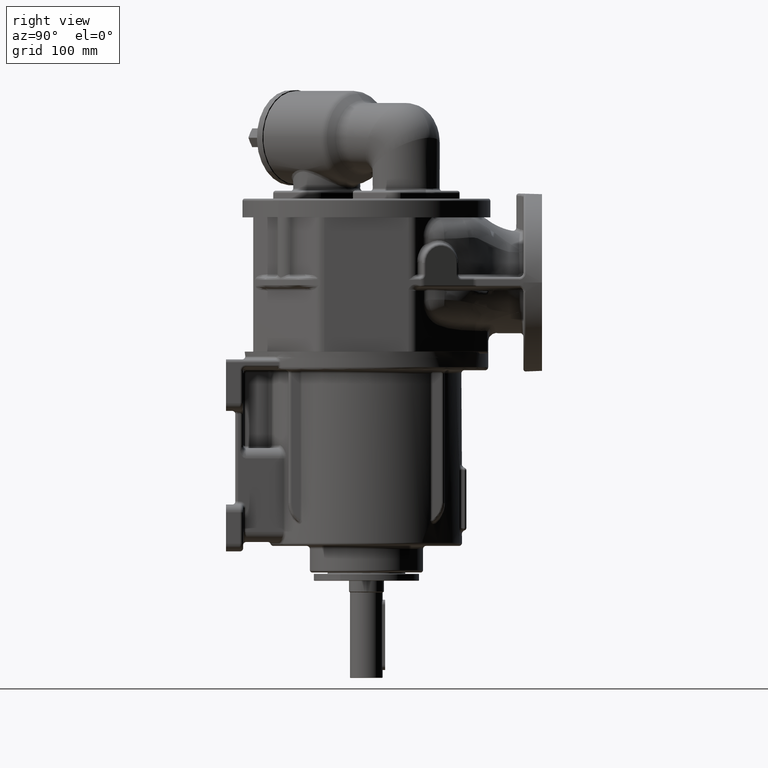
[diagram: clean part render]
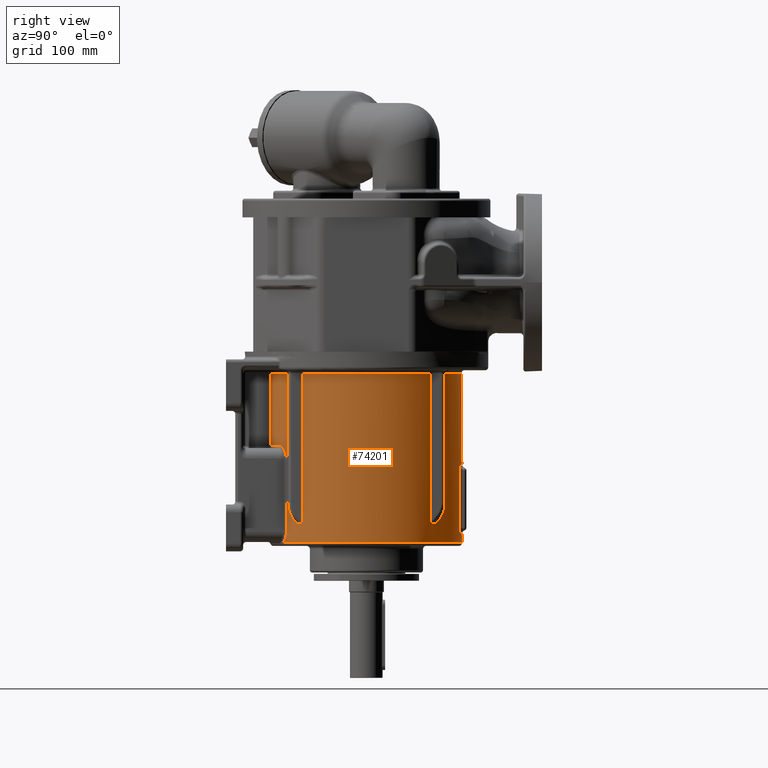
[diagram: same view with one face highlighted and labeled with its STEP entity id]
A machine part, right view. The second image highlights one B-rep face of the part: STEP entity #74201.
In plain terms, the highlighted cylindrical surface (partial cylindrical patch) has radius 122.5 mm, axis along (0, 0, -1).
Its self-contained STEP definition (entity closure, byte-faithful):
#17039=DIRECTION('',(1.877829146281E-6,2.085067210335E-6,-9.999999999961E-1));
#17040=VECTOR('',#17039,1.874771713727E2);
#17041=CARTESIAN_POINT('',(9.102766798419E1,-8.197690931817E1,-2.E1));
#17042=LINE('',#17041,#17040);
#17048=CARTESIAN_POINT('',(9.102802003429E1,-8.197651841567E1,
-2.074771713719E2));
#17049=CARTESIAN_POINT('',(9.102802028380E1,-8.197651794791E1,
-2.075935782432E2));
#17050=CARTESIAN_POINT('',(9.102410569908E1,-8.198086516869E1,
-2.078170062758E2));
#17051=CARTESIAN_POINT('',(9.101117184974E1,-8.199522421993E1,
-2.081184740774E2));
#17052=CARTESIAN_POINT('',(9.099077947816E1,-8.201785460038E1,
-2.084028686485E2));
#17053=CARTESIAN_POINT('',(9.096337862087E1,-8.204824461555E1,
-2.086753065854E2));
#17054=CARTESIAN_POINT('',(9.092952773077E1,-8.208576001444E1,
-2.089344700457E2));
#17055=CARTESIAN_POINT('',(9.088951692172E1,-8.213006197475E1,
-2.091823572505E2));
#17056=CARTESIAN_POINT('',(9.084364001426E1,-8.218080569087E1,
-2.094196340917E2));
#17057=CARTESIAN_POINT('',(9.079211666154E1,-8.223772691617E1,
-2.096471427615E2));
#17058=CARTESIAN_POINT('',(9.073511434913E1,-8.230061756976E1,
-2.098655597235E2));
#17059=CARTESIAN_POINT('',(9.067275959668E1,-8.236931333317E1,
-2.100754647506E2));
#17060=CARTESIAN_POINT('',(9.060513175408E1,-8.244370035508E1,
-2.102773719643E2));
#17061=CARTESIAN_POINT('',(9.053227605217E1,-8.252370067116E1,
-2.104717095160E2));
#17062=CARTESIAN_POINT('',(9.045420787698E1,-8.260926730661E1,
-2.106588299741E2));
#17063=CARTESIAN_POINT('',(9.037091679391E1,-8.270037964428E1,
-2.108390154845E2));
#17064=CARTESIAN_POINT('',(9.028235808881E1,-8.279705239783E1,
-2.110125061239E2));
#17065=CARTESIAN_POINT('',(9.018846141609E1,-8.289932578288E1,
-2.111794830047E2));
#17066=CARTESIAN_POINT('',(9.008914407112E1,-8.300725076284E1,
-2.113400573209E2));
#17067=CARTESIAN_POINT('',(8.998430558457E1,-8.312089468463E1,
-2.114942881932E2));
#17068=CARTESIAN_POINT('',(8.987382666530E1,-8.324034209104E1,
-2.116421878399E2));
#17069=CARTESIAN_POINT('',(8.975757155072E1,-8.336569180863E1,
-2.117837207849E2));
#17070=CARTESIAN_POINT('',(8.963539845103E1,-8.349704536065E1,
-2.119187949173E2));
#17071=CARTESIAN_POINT('',(8.950716075990E1,-8.363450544729E1,
-2.120472665574E2));
#17072=CARTESIAN_POINT('',(8.937270623506E1,-8.377817658954E1,
-2.121689453962E2));
#17073=CARTESIAN_POINT('',(8.923188311279E1,-8.392815838180E1,
-2.122835922197E2));
#17074=CARTESIAN_POINT('',(8.908454091768E1,-8.408454449120E1,
-2.123909221995E2));
#17075=CARTESIAN_POINT('',(8.893053929468E1,-8.424741320053E1,
-2.124906022978E2));
#17076=CARTESIAN_POINT('',(8.876975521809E1,-8.441681990517E1,
-2.125822530091E2));
#17077=CARTESIAN_POINT('',(8.860207474443E1,-8.459280599489E1,
-2.126654586314E2));
#17078=CARTESIAN_POINT('',(8.842739592605E1,-8.477539589472E1,
-2.127397679566E2));
#17079=CARTESIAN_POINT('',(8.824563961652E1,-8.496458603743E1,
-2.128046933154E2));
#17080=CARTESIAN_POINT('',(8.805675089688E1,-8.516034386635E1,
-2.128597154876E2));
#17081=CARTESIAN_POINT('',(8.786070272418E1,-8.536260463436E1,
-2.129042875661E2));
#17082=CARTESIAN_POINT('',(8.765749866280E1,-8.557126931046E1,
-2.129378395657E2));
#17083=CARTESIAN_POINT('',(8.744717521703E1,-8.578620303301E1,
-2.129597832489E2));
#17084=CARTESIAN_POINT('',(8.722980382726E1,-8.600723403882E1,
-2.129695171192E2));
#17085=CARTESIAN_POINT('',(8.700549250804E1,-8.623415307877E1,
-2.129664315249E2));
#17086=CARTESIAN_POINT('',(8.677438655142E1,-8.646671388500E1,
-2.129499137626E2));
#17087=CARTESIAN_POINT('',(8.653666835340E1,-8.670463458983E1,
-2.129193528839E2));
#17088=CARTESIAN_POINT('',(8.629255743374E1,-8.694759899415E1,
-2.128741442045E2));
#17089=CARTESIAN_POINT('',(8.604230982101E1,-8.719525850289E1,
-2.128136934946E2));
#17090=CARTESIAN_POINT('',(8.578621644712E1,-8.744723503802E1,
-2.127374205459E2));
#17091=CARTESIAN_POINT('',(8.552460152821E1,-8.770312392463E1,
-2.126447621903E2));
#17092=CARTESIAN_POINT('',(8.525782043235E1,-8.796249722411E1,
-2.125351746557E2));
#17093=CARTESIAN_POINT('',(8.498625700163E1,-8.822490750471E1,
-2.124081350287E2));
#17094=CARTESIAN_POINT('',(8.471032123927E1,-8.848989116146E1,
-2.122631423472E2));
#17095=CARTESIAN_POINT('',(8.443044627257E1,-8.875697226597E1,
-2.120997172280E2));
#17096=CARTESIAN_POINT('',(8.414709019605E1,-8.902566180308E1,
-2.119174054121E2));
#17097=CARTESIAN_POINT('',(8.386070926621E1,-8.929548346228E1,
-2.117157578034E2));
#17098=CARTESIAN_POINT('',(8.357184116705E1,-8.956589640619E1,
-2.114943942102E2));
#17099=CARTESIAN_POINT('',(8.337789581709E1,-8.974627598612E1,
-2.113333761875E2));
#17100=CARTESIAN_POINT('',(8.328064725803E1,-8.983642795738E1,
-2.112494226416E2));
#17160=CARTESIAN_POINT('',(6.973844944572E1,1.007114624509E2,-1.86E2));
#17161=CARTESIAN_POINT('',(6.973844956582E1,1.007114623832E2,
-1.862139769637E2));
#17162=CARTESIAN_POINT('',(6.974409946317E1,1.007075503970E2,
-1.866423092307E2));
#17163=CARTESIAN_POINT('',(6.976960974945E1,1.006898808406E2,
-1.872858649900E2));
#17164=CARTESIAN_POINT('',(6.981225208049E1,1.006603235238E2,
-1.879307111014E2));
#17165=CARTESIAN_POINT('',(6.987220896508E1,1.006187195294E2,
-1.885776121812E2));
#17166=CARTESIAN_POINT('',(6.994972064099E1,1.005648559230E2,
-1.892271371435E2));
#17167=CARTESIAN_POINT('',(7.004510681240E1,1.004984496704E2,
-1.898799745438E2));
#17168=CARTESIAN_POINT('',(7.015875184776E1,1.004191565599E2,
-1.905367462662E2));
#17169=CARTESIAN_POINT('',(7.029111220557E1,1.003265643665E2,
-1.911980864798E2));
#17170=CARTESIAN_POINT('',(7.044271139259E1,1.002201943326E2,
-1.918646023261E2));
#17171=CARTESIAN_POINT('',(7.061414040388E1,1.000994984668E2,
-1.925368835817E2));
#17172=CARTESIAN_POINT('',(7.080605464802E1,9.996385891422E1,
-1.932154916019E2));
#17173=CARTESIAN_POINT('',(7.101917141265E1,9.981258655E1,-1.939009554253E2));
#17174=CARTESIAN_POINT('',(7.125426443596E1,9.964492122174E1,
-1.945937605230E2));
#17175=CARTESIAN_POINT('',(7.151216067192E1,9.946003001814E1,
-1.952943470267E2));
#17176=CARTESIAN_POINT('',(7.179372558420E1,9.925701336484E1,
-1.960030797156E2));
#17177=CARTESIAN_POINT('',(7.209984987491E1,9.903490993936E1,
-1.967202336935E2));
#17178=CARTESIAN_POINT('',(7.243144976023E1,9.879269148177E1,
-1.974460123739E2));
#17179=CARTESIAN_POINT('',(7.278944824011E1,9.852927107370E1,
-1.981805199721E2));
#17180=CARTESIAN_POINT('',(7.317475321275E1,9.824351386690E1,
-1.989237375311E2));
#17181=CARTESIAN_POINT('',(7.358823494264E1,9.793424860988E1,
-1.996755047339E2));
#17182=CARTESIAN_POINT('',(7.403069830980E1,9.760028365211E1,
-2.004354981876E2));
#17183=CARTESIAN_POINT('',(7.450285170399E1,9.724042649103E1,
-2.012032106951E2));
#17184=CARTESIAN_POINT('',(7.500527255488E1,9.685350735728E1,
-2.019779314084E2));
#17185=CARTESIAN_POINT('',(7.553836960746E1,9.643840734648E1,
-2.027587271001E2));
#17186=CARTESIAN_POINT('',(7.610234404388E1,9.599409012510E1,
-2.035444275165E2));
#17187=CARTESIAN_POINT('',(7.669715146037E1,9.551963624930E1,
-2.043336166192E2));
#17188=CARTESIAN_POINT('',(7.732246700914E1,9.501427880114E1,
-2.051246313446E2));
#17189=CARTESIAN_POINT('',(7.797765643813E1,9.447743850046E1,
-2.059155694073E2));
#17190=CARTESIAN_POINT('',(7.866175524959E1,9.390875665485E1,
-2.067043067512E2));
#17191=CARTESIAN_POINT('',(7.937346085637E1,9.330812151866E1,
-2.074885273223E2));
#17192=CARTESIAN_POINT('',(8.011113441430E1,9.267569069819E1,
-2.082657600351E2));
#17193=CARTESIAN_POINT('',(8.087283083718E1,9.201189092184E1,
-2.090334355868E2));
#17194=CARTESIAN_POINT('',(8.165629972726E1,9.131744907660E1,
-2.097889161710E2));
#17195=CARTESIAN_POINT('',(8.245912784918E1,9.059328365566E1,
-2.105296201174E2));
#17196=CARTESIAN_POINT('',(8.300496036917E1,9.009199675318E1,
-2.110114256445E2));
#17197=CARTESIAN_POINT('',(8.328063817978E1,8.983643638051E1,
-2.112494151128E2));
#17199=DIRECTION('',(1.335049875202E-12,1.927711002873E-12,-1.E0));
#17200=VECTOR('',#17199,1.66E2);
#17201=CARTESIAN_POINT('',(6.973844944550E1,1.007114624506E2,-2.E1));
#17202=LINE('',#17201,#17200);
#17203=CARTESIAN_POINT('',(0.E0,0.E0,-2.E1));
#17204=DIRECTION('',(0.E0,0.E0,1.E0));
#17205=DIRECTION('',(5.692934648612E-1,8.221343873518E-1,0.E0));
#17206=AXIS2_PLACEMENT_3D('',#17203,#17204,#17205);
#17208=DIRECTION('',(-1.223674441561E-12,1.767025615521E-12,-1.E0));
#17209=VECTOR('',#17208,1.66E2);
#17210=CARTESIAN_POINT('',(-6.973844944550E1,1.007114624506E2,-2.E1));
#17211=LINE('',#17210,#17209);
#17212=CARTESIAN_POINT('',(-6.973844944571E1,1.007114624509E2,-1.86E2));
#17213=CARTESIAN_POINT('',(-6.973844956212E1,1.007114623851E2,
-1.862139762683E2));
#17214=CARTESIAN_POINT('',(-6.974409943879E1,1.007075504142E2,
-1.866423073509E2));
#17215=CARTESIAN_POINT('',(-6.976960951849E1,1.006898810006E2,
-1.872858605213E2));
#17216=CARTESIAN_POINT('',(-6.981225178769E1,1.006603237269E2,
-1.879307075268E2));
#17217=CARTESIAN_POINT('',(-6.987220855219E1,1.006187198161E2,
-1.885776081904E2));
#17218=CARTESIAN_POINT('',(-6.994971992584E1,1.005648564203E2,
-1.892271316814E2));
#17219=CARTESIAN_POINT('',(-7.004510578861E1,1.004984503838E2,
-1.898799680791E2));
#17220=CARTESIAN_POINT('',(-7.015875042537E1,1.004191575534E2,
-1.905367385908E2));
#17221=CARTESIAN_POINT('',(-7.029111032449E1,1.003265656841E2,
-1.911980776371E2));
#17222=CARTESIAN_POINT('',(-7.044270897660E1,1.002201960302E2,
-1.918645922681E2));
#17223=CARTESIAN_POINT('',(-7.061413737754E1,1.000995006011E2,
-1.925368722874E2));
#17224=CARTESIAN_POINT('',(-7.080605092879E1,9.996386154787E1,
-1.932154790356E2));
#17225=CARTESIAN_POINT('',(-7.101916691724E1,9.981258974765E1,
-1.939009415618E2));
#17226=CARTESIAN_POINT('',(-7.125425906514E1,9.964492506117E1,
-1.945937453050E2));
#17227=CARTESIAN_POINT('',(-7.151215435103E1,9.946003456148E1,
-1.952943304766E2));
#17228=CARTESIAN_POINT('',(-7.179371815644E1,9.925701873556E1,
-1.960030616504E2));
#17229=CARTESIAN_POINT('',(-7.209984108613E1,9.903491633538E1,
-1.967202137600E2));
#17230=CARTESIAN_POINT('',(-7.243143943747E1,9.879269904716E1,
-1.974459904674E2));
#17231=CARTESIAN_POINT('',(-7.278943626115E1,9.852927991989E1,
-1.981804961114E2));
#17232=CARTESIAN_POINT('',(-7.317473948839E1,9.824352408536E1,
-1.989237118014E2));
#17233=CARTESIAN_POINT('',(-7.358821941191E1,9.793426027552E1,
-1.996754772632E2));
#17234=CARTESIAN_POINT('',(-7.403068101245E1,9.760029676794E1,
-2.004354692603E2));
#17235=CARTESIAN_POINT('',(-7.450283278758E1,9.724044098004E1,
-2.012031807282E2));
#17236=CARTESIAN_POINT('',(-7.500525226584E1,9.685352306579E1,
-2.019779009104E2));
#17237=CARTESIAN_POINT('',(-7.553834828727E1,9.643842404331E1,
-2.027586966451E2));
#17238=CARTESIAN_POINT('',(-7.610232210865E1,9.599410751332E1,
-2.035443977010E2));
#17239=CARTESIAN_POINT('',(-7.669712941575E1,9.551965395019E1,
-2.043335880746E2));
#17240=CARTESIAN_POINT('',(-7.732244547787E1,9.501429632589E1,
-2.051246047598E2));
#17241=CARTESIAN_POINT('',(-7.797763607064E1,9.447745531642E1,
-2.059155454086E2));
#17242=CARTESIAN_POINT('',(-7.866173669267E1,9.390877220697E1,
-2.067042858698E2));
#17243=CARTESIAN_POINT('',(-7.937344471358E1,9.330813526342E1,
-2.074885099723E2));
#17244=CARTESIAN_POINT('',(-8.011112143653E1,9.267570192950E1,
-2.082657467018E2));
#17245=CARTESIAN_POINT('',(-8.087282111802E1,9.201189948788E1,
-2.090334260638E2));
#17246=CARTESIAN_POINT('',(-8.165629499296E1,9.131745332413E1,
-2.097889117502E2));
#17247=CARTESIAN_POINT('',(-8.245912472110E1,9.059328652387E1,
-2.105296172893E2));
#17248=CARTESIAN_POINT('',(-8.300496003264E1,9.009199705247E1,
-2.110114254205E2));
#17249=CARTESIAN_POINT('',(-8.328063695537E1,8.983643751869E1,
-2.112494140937E2));
#17251=CARTESIAN_POINT('',(0.E0,0.E0,-2.E1));
#17252=DIRECTION('',(0.E0,0.E0,1.E0));
#17253=DIRECTION('',(-7.430830039526E-1,6.691992597402E-1,0.E0));
#17254=AXIS2_PLACEMENT_3D('',#17251,#17252,#17253);
#17256=CARTESIAN_POINT('',(-6.973844944569E1,-1.007114624509E2,-1.86E2));
#17257=CARTESIAN_POINT('',(-6.973844955904E1,-1.007114623867E2,
-1.862139764085E2));
#17258=CARTESIAN_POINT('',(-6.974409945135E1,-1.007075504057E2,
-1.866423078535E2));
#17259=CARTESIAN_POINT('',(-6.976960954975E1,-1.006898809788E2,
-1.872858612851E2));
#17260=CARTESIAN_POINT('',(-6.981225195860E1,-1.006603236084E2,
-1.879307098523E2));
#17261=CARTESIAN_POINT('',(-6.987220890660E1,-1.006187195700E2,
-1.885776116072E2));
#17262=CARTESIAN_POINT('',(-6.994972049085E1,-1.005648560274E2,
-1.892271360022E2));
#17263=CARTESIAN_POINT('',(-7.004510663121E1,-1.004984497967E2,
-1.898799734143E2));
#17264=CARTESIAN_POINT('',(-7.015875159734E1,-1.004191567348E2,
-1.905367449178E2));
#17265=CARTESIAN_POINT('',(-7.029111188717E1,-1.003265645895E2,
-1.911980849881E2));
#17266=CARTESIAN_POINT('',(-7.044271099195E1,-1.002201946141E2,
-1.918646006606E2));
#17267=CARTESIAN_POINT('',(-7.061413991153E1,-1.000994988141E2,
-1.925368817463E2));
#17268=CARTESIAN_POINT('',(-7.080605405163E1,-9.996385933654E1,
-1.932154895882E2));
#17269=CARTESIAN_POINT('',(-7.101917070075E1,-9.981258705639E1,
-1.939009532307E2));
#17270=CARTESIAN_POINT('',(-7.125426359271E1,-9.964492182456E1,
-1.945937581346E2));
#17271=CARTESIAN_POINT('',(-7.151215969120E1,-9.946003072307E1,
-1.952943444593E2));
#17272=CARTESIAN_POINT('',(-7.179372442510E1,-9.925701420291E1,
-1.960030768951E2));
#17273=CARTESIAN_POINT('',(-7.209984846614E1,-9.903491096453E1,
-1.967202304963E2));
#17274=CARTESIAN_POINT('',(-7.243144807121E1,-9.879269271959E1,
-1.974460087882E2));
#17275=CARTESIAN_POINT('',(-7.278944624173E1,-9.852927254932E1,
-1.981805159890E2));
#17276=CARTESIAN_POINT('',(-7.317475077818E1,-9.824351567909E1,
-1.989237329610E2));
#17277=CARTESIAN_POINT('',(-7.358823191846E1,-9.793425088093E1,
-1.996754993780E2));
#17278=CARTESIAN_POINT('',(-7.403069482483E1,-9.760028629469E1,
-2.004354923576E2));
#17279=CARTESIAN_POINT('',(-7.450284805510E1,-9.724042928649E1,
-2.012032049172E2));
#17280=CARTESIAN_POINT('',(-7.500526886432E1,-9.685351021516E1,
-2.019779258627E2));
#17281=CARTESIAN_POINT('',(-7.553836588023E1,-9.643841026586E1,
-2.027587217766E2));
#17282=CARTESIAN_POINT('',(-7.610234038951E1,-9.599409302275E1,
-2.035444225513E2));
#17283=CARTESIAN_POINT('',(-7.669714808313E1,-9.551963896216E1,
-2.043336122497E2));
#17284=CARTESIAN_POINT('',(-7.732246397988E1,-9.501428126757E1,
-2.051246276068E2));
#17285=CARTESIAN_POINT('',(-7.797765378606E1,-9.447744069110E1,
-2.059155662846E2));
#17286=CARTESIAN_POINT('',(-7.866175314566E1,-9.390875841969E1,
-2.067043043879E2));
#17287=CARTESIAN_POINT('',(-7.937345940281E1,-9.330812275823E1,
-2.074885257653E2));
#17288=CARTESIAN_POINT('',(-8.011113365929E1,-9.267569135382E1,
-2.082657592642E2));
#17289=CARTESIAN_POINT('',(-8.087283080426E1,-9.201189095571E1,
-2.090334355680E2));
#17290=CARTESIAN_POINT('',(-8.165630071750E1,-9.131744819448E1,
-2.097889171070E2));
#17291=CARTESIAN_POINT('',(-8.245912840918E1,-9.059328313669E1,
-2.105296206158E2));
#17292=CARTESIAN_POINT('',(-8.300496020302E1,-9.009199691308E1,
-2.110114254771E2));
#17293=CARTESIAN_POINT('',(-8.328063889183E1,-8.983643572107E1,
-2.112494157018E2));
#17295=DIRECTION('',(-1.137382022567E-12,-1.642637832984E-12,-1.E0));
#17296=VECTOR('',#17295,1.66E2);
#17297=CARTESIAN_POINT('',(-6.973844944550E1,-1.007114624506E2,-2.E1));
#17298=LINE('',#17297,#17296);
#17299=CARTESIAN_POINT('',(0.E0,0.E0,-2.E1));
#17300=DIRECTION('',(0.E0,0.E0,1.E0));
#17301=DIRECTION('',(-5.692934648612E-1,-8.221343873518E-1,0.E0));
#17302=AXIS2_PLACEMENT_3D('',#17299,#17300,#17301);
#17304=DIRECTION('',(0.E0,0.E0,-1.E0));
#17305=VECTOR('',#17304,9.2E1);
#17306=CARTESIAN_POINT('',(-8.715415019763E0,-1.221895721452E2,-2.E1));
#17307=LINE('',#17306,#17305);
#17308=CARTESIAN_POINT('',(0.E0,0.E0,-1.12E2));
#17309=DIRECTION('',(0.E0,0.E0,-1.E0));
#17310=DIRECTION('',(-7.114624505929E-2,-9.974658950631E-1,0.E0));
#17311=AXIS2_PLACEMENT_3D('',#17308,#17309,#17310);
#17313=CARTESIAN_POINT('',(-5.035573122530E1,-1.116716182956E2,-1.12E2));
#17314=CARTESIAN_POINT('',(-5.054583021674E1,-1.115858975556E2,
-1.120000000424E2));
#17315=CARTESIAN_POINT('',(-5.092630619172E1,-1.114131630457E2,
-1.120067954117E2));
#17316=CARTESIAN_POINT('',(-5.149818656655E1,-1.111499855586E2,
-1.120375403513E2));
#17317=CARTESIAN_POINT('',(-5.207011273510E1,-1.108832103443E2,
-1.120889606304E2));
#17318=CARTESIAN_POINT('',(-5.264139004060E1,-1.106131420789E2,
-1.121611451394E2));
#17319=CARTESIAN_POINT('',(-5.321118628223E1,-1.103401675265E2,
-1.122541427270E2));
#17320=CARTESIAN_POINT('',(-5.377867470594E1,-1.100646921147E2,
-1.123679581509E2));
#17321=CARTESIAN_POINT('',(-5.434300028151E1,-1.097871559358E2,
-1.125025484829E2));
#17322=CARTESIAN_POINT('',(-5.490328814907E1,-1.095080308225E2,
-1.126578181885E2));
#17323=CARTESIAN_POINT('',(-5.545864753558E1,-1.092278189860E2,
-1.128336158838E2));
#17324=CARTESIAN_POINT('',(-5.600817566568E1,-1.089470515219E2,
-1.130297307051E2));
#17325=CARTESIAN_POINT('',(-5.655096397387E1,-1.086662854459E2,
-1.132458899222E2));
#17326=CARTESIAN_POINT('',(-5.708610375335E1,-1.083861006893E2,
-1.134817569262E2));
#17327=CARTESIAN_POINT('',(-5.761269306554E1,-1.081070960983E2,
-1.137369303606E2));
#17328=CARTESIAN_POINT('',(-5.812984386270E1,-1.078298849453E2,
-1.140109442307E2));
#17329=CARTESIAN_POINT('',(-5.863668945833E1,-1.075550898756E2,
-1.143032691799E2));
#17330=CARTESIAN_POINT('',(-5.913239213038E1,-1.072833374021E2,
-1.146133150010E2));
#17331=CARTESIAN_POINT('',(-5.961615059017E1,-1.070152521079E2,
-1.149404343745E2));
#17332=CARTESIAN_POINT('',(-6.008720709033E1,-1.067514507098E2,
-1.152839277910E2));
#17333=CARTESIAN_POINT('',(-6.054485397406E1,-1.064925361375E2,
-1.156430495931E2));
#17334=CARTESIAN_POINT('',(-6.098843942990E1,-1.062390918164E2,
-1.160170149852E2));
#17335=CARTESIAN_POINT('',(-6.141737226816E1,-1.059916763229E2,
-1.164050078340E2));
#17336=CARTESIAN_POINT('',(-6.183112556596E1,-1.057508185756E2,
-1.168061890418E2));
#17337=CARTESIAN_POINT('',(-6.222923907140E1,-1.055170137E2,-1.172197052490E2));
#17338=CARTESIAN_POINT('',(-6.261132029876E1,-1.052907196854E2,
-1.176446976006E2));
#17339=CARTESIAN_POINT('',(-6.297704430573E1,-1.050723549104E2,
-1.180803103115E2));
#17340=CARTESIAN_POINT('',(-6.332615223402E1,-1.048622965549E2,
-1.185256988307E2));
#17341=CARTESIAN_POINT('',(-6.365844870275E1,-1.046608799008E2,
-1.189800374007E2));
#17342=CARTESIAN_POINT('',(-6.397379815775E1,-1.044683985E2,-1.194425258054E2));
#17343=CARTESIAN_POINT('',(-6.427212035692E1,-1.042851051350E2,
-1.199123952012E2));
#17344=CARTESIAN_POINT('',(-6.455338516162E1,-1.041112134837E2,
-1.203889129323E2));
#17345=CARTESIAN_POINT('',(-6.481760685963E1,-1.039469003562E2,
-1.208713863744E2));
#17346=CARTESIAN_POINT('',(-6.506483805508E1,-1.037923084782E2,
-1.213591655207E2));
#17347=CARTESIAN_POINT('',(-6.529516371258E1,-1.036475494397E2,
-1.218516451874E2));
#17348=CARTESIAN_POINT('',(-6.550869449257E1,-1.035127073291E2,
-1.223482648331E2));
#17349=CARTESIAN_POINT('',(-6.570556069959E1,-1.033878422045E2,
-1.228485080887E2));
#17350=CARTESIAN_POINT('',(-6.588590740483E1,-1.032729930001E2,
-1.233519041676E2));
#17351=CARTESIAN_POINT('',(-6.604988847888E1,-1.031681812746E2,
-1.238580256128E2));
#17352=CARTESIAN_POINT('',(-6.619766123815E1,-1.030734147037E2,
-1.243664855132E2));
#17353=CARTESIAN_POINT('',(-6.632938192035E1,-1.029886901386E2,
-1.248769354214E2));
#17354=CARTESIAN_POINT('',(-6.644520129027E1,-1.029139966512E2,
-1.253890617457E2));
#17355=CARTESIAN_POINT('',(-6.654526114970E1,-1.028493180416E2,
-1.259025835379E2));
#17356=CARTESIAN_POINT('',(-6.662969053801E1,-1.027946355680E2,
-1.264172468927E2));
#17357=CARTESIAN_POINT('',(-6.669860381362E1,-1.027499294630E2,
-1.269328232673E2));
#17358=CARTESIAN_POINT('',(-6.675209729645E1,-1.027151813655E2,
-1.274491123154E2));
#17359=CARTESIAN_POINT('',(-6.679024659273E1,-1.026903762919E2,
-1.279658789668E2));
#17360=CARTESIAN_POINT('',(-6.681311053561E1,-1.026755002516E2,
-1.284830544216E2));
#17361=CARTESIAN_POINT('',(-6.681818178471E1,-1.026721996634E2,
-1.288276865055E2));
#17362=CARTESIAN_POINT('',(-6.681818181818E1,-1.026721996380E2,-1.29E2));
#17364=DIRECTION('',(0.E0,0.E0,-1.E0));
#17365=VECTOR('',#17364,9.4E1);
#17366=CARTESIAN_POINT('',(-6.681818181818E1,-1.026721996380E2,-1.29E2));
#17367=LINE('',#17366,#17365);
#17368=CARTESIAN_POINT('',(-6.681818181818E1,-1.026721996380E2,-2.23E2));
#17369=CARTESIAN_POINT('',(-6.681818178426E1,-1.026721996636E2,
-2.231713417204E2));
#17370=CARTESIAN_POINT('',(-6.681316754370E1,-1.026754631453E2,
-2.235140320414E2));
#17371=CARTESIAN_POINT('',(-6.679056057645E1,-1.026901720289E2,
-2.240282973422E2));
#17372=CARTESIAN_POINT('',(-6.675283995422E1,-1.027146986203E2,
-2.245421649300E2));
#17373=CARTESIAN_POINT('',(-6.669994758650E1,-1.027490569693E2,
-2.250555691800E2));
#17374=CARTESIAN_POINT('',(-6.663180951392E1,-1.027932617533E2,
-2.255682752697E2));
#17375=CARTESIAN_POINT('',(-6.654833121890E1,-1.028473311539E2,
-2.260800873526E2));
#17376=CARTESIAN_POINT('',(-6.644940105149E1,-1.029112844064E2,
-2.265907785465E2));
#17377=CARTESIAN_POINT('',(-6.633489318837E1,-1.029851396374E2,
-2.271000979540E2));
#17378=CARTESIAN_POINT('',(-6.620466884836E1,-1.030689128109E2,
-2.276077706556E2));
#17379=CARTESIAN_POINT('',(-6.605858032178E1,-1.031626148562E2,
-2.281134899466E2));
#17380=CARTESIAN_POINT('',(-6.589647440225E1,-1.032662492047E2,
-2.286169150693E2));
#17381=CARTESIAN_POINT('',(-6.571819650648E1,-1.033798089245E2,
-2.291176680710E2));
#17382=CARTESIAN_POINT('',(-6.552359520958E1,-1.035032736549E2,
-2.296153312576E2));
#17383=CARTESIAN_POINT('',(-6.531252719107E1,-1.036366063696E2,
-2.301094451148E2));
#17384=CARTESIAN_POINT('',(-6.508486255793E1,-1.037797500209E2,
-2.305995067896E2));
#17385=CARTESIAN_POINT('',(-6.484049048265E1,-1.039326241316E2,
-2.310849692218E2));
#17386=CARTESIAN_POINT('',(-6.457932507310E1,-1.040951214195E2,
-2.315652410270E2));
#17387=CARTESIAN_POINT('',(-6.430131136992E1,-1.042671045465E2,
-2.320396872162E2));
#17388=CARTESIAN_POINT('',(-6.400643136024E1,-1.044484030898E2,
-2.325076308073E2));
#17389=CARTESIAN_POINT('',(-6.369470986198E1,-1.046388108446E2,
-2.329683553978E2));
#17390=CARTESIAN_POINT('',(-6.336622010680E1,-1.048380835814E2,
-2.334211087483E2));
#17391=CARTESIAN_POINT('',(-6.302108886628E1,-1.050459373592E2,
-2.338651073665E2));
#17392=CARTESIAN_POINT('',(-6.265950091874E1,-1.052620475119E2,
-2.342995420490E2));
#17393=CARTESIAN_POINT('',(-6.228170272247E1,-1.054860483874E2,
-2.347235844303E2));
#17394=CARTESIAN_POINT('',(-6.188800499932E1,-1.057175339368E2,
-2.351363939383E2));
#17395=CARTESIAN_POINT('',(-6.147878828249E1,-1.059560569371E2,
-2.355371230765E2));
#17396=CARTESIAN_POINT('',(-6.105448520843E1,-1.062011415008E2,
-2.359249397331E2));
#17397=CARTESIAN_POINT('',(-6.061563800508E1,-1.064522533374E2,
-2.362989913261E2));
#17398=CARTESIAN_POINT('',(-6.016270816717E1,-1.067089092058E2,
-2.366585515797E2));
#17399=CARTESIAN_POINT('',(-5.985204600398E1,-1.068831846129E2,
-2.368878942242E2));
#17400=CARTESIAN_POINT('',(-5.969444490234E1,-1.069711327713E2,
-2.369999997386E2));
#17402=CARTESIAN_POINT('',(0.E0,0.E0,-2.37E2));
#17403=DIRECTION('',(0.E0,0.E0,-1.E0));
#17404=DIRECTION('',(-4.873015898605E-1,-8.732337376210E-1,0.E0));
#17405=AXIS2_PLACEMENT_3D('',#17402,#17403,#17404);
#17407=CARTESIAN_POINT('',(5.969444469310E1,-1.069711328691E2,
-2.369999998733E2));
#17408=CARTESIAN_POINT('',(5.985204556661E1,-1.068831848569E2,
-2.368878944584E2));
#17409=CARTESIAN_POINT('',(6.016270628170E1,-1.067089102656E2,
-2.366585530640E2));
#17410=CARTESIAN_POINT('',(6.061563271668E1,-1.064522563338E2,
-2.362989955323E2));
#17411=CARTESIAN_POINT('',(6.105446856576E1,-1.062011510495E2,
-2.359249542322E2));
#17412=CARTESIAN_POINT('',(6.147876391818E1,-1.059560710613E2,
-2.355371459832E2));
#17413=CARTESIAN_POINT('',(6.188797282086E1,-1.057175527618E2,
-2.351364263840E2));
#17414=CARTESIAN_POINT('',(6.228166458452E1,-1.054860708968E2,
-2.347236256756E2));
#17415=CARTESIAN_POINT('',(6.265945895689E1,-1.052620724871E2,
-2.342995907019E2));
#17416=CARTESIAN_POINT('',(6.302104659043E1,-1.050459627239E2,
-2.338651599276E2));
#17417=CARTESIAN_POINT('',(6.336617986875E1,-1.048381079055E2,
-2.334211623595E2));
#17418=CARTESIAN_POINT('',(6.369467207106E1,-1.046388338515E2,
-2.329684093530E2));
#17419=CARTESIAN_POINT('',(6.400639582815E1,-1.044484248669E2,
-2.325076852261E2));
#17420=CARTESIAN_POINT('',(6.430127816378E1,-1.042671250275E2,
-2.320397418498E2));
#17421=CARTESIAN_POINT('',(6.457929414027E1,-1.040951406124E2,
-2.315652957923E2));
#17422=CARTESIAN_POINT('',(6.484046179097E1,-1.039326420340E2,
-2.310850240055E2));
#17423=CARTESIAN_POINT('',(6.508483605515E1,-1.037797666442E2,
-2.305995615118E2));
#17424=CARTESIAN_POINT('',(6.531250282850E1,-1.036366217252E2,
-2.301094996923E2));
#17425=CARTESIAN_POINT('',(6.552357294002E1,-1.035032877547E2,
-2.296153856037E2));
#17426=CARTESIAN_POINT('',(6.571817628331E1,-1.033798217820E2,
-2.291177220982E2));
#17427=CARTESIAN_POINT('',(6.589645618167E1,-1.032662608331E2,
-2.286169686775E2));
#17428=CARTESIAN_POINT('',(6.605856404921E1,-1.031626252774E2,
-2.281135430722E2));
#17429=CARTESIAN_POINT('',(6.620465447788E1,-1.030689220427E2,
-2.276078231814E2));
#17430=CARTESIAN_POINT('',(6.633488061364E1,-1.029851477381E2,
-2.271001500582E2));
#17431=CARTESIAN_POINT('',(6.644939030074E1,-1.029112913489E2,
-2.265908297035E2));
#17432=CARTESIAN_POINT('',(6.654832194523E1,-1.028473371553E2,
-2.260801392628E2));
#17433=CARTESIAN_POINT('',(6.663180244911E1,-1.027932663335E2,
-2.255683230731E2));
#17434=CARTESIAN_POINT('',(6.669994234922E1,-1.027490603697E2,
-2.250556140186E2));
#17435=CARTESIAN_POINT('',(6.675283719809E1,-1.027147004120E2,
-2.245421977323E2));
#17436=CARTESIAN_POINT('',(6.679055930991E1,-1.026901728528E2,
-2.240283195213E2));
#17437=CARTESIAN_POINT('',(6.681316705631E1,-1.026754634625E2,
-2.235140515863E2));
#17438=CARTESIAN_POINT('',(6.681818178490E1,-1.026721996632E2,
-2.231713490964E2));
#17439=CARTESIAN_POINT('',(6.681818181818E1,-1.026721996380E2,-2.23E2));
#17441=DIRECTION('',(0.E0,0.E0,1.E0));
#17442=VECTOR('',#17441,9.4E1);
#17443=CARTESIAN_POINT('',(6.681818181818E1,-1.026721996380E2,-2.23E2));
#17444=LINE('',#17443,#17442);
#17445=CARTESIAN_POINT('',(6.681818181818E1,-1.026721996380E2,-1.29E2));
#17446=CARTESIAN_POINT('',(6.681818178407E1,-1.026721996637E2,
-1.288276897627E2));
#17447=CARTESIAN_POINT('',(6.681311073902E1,-1.026755001193E2,
-1.284830625810E2));
#17448=CARTESIAN_POINT('',(6.679024711520E1,-1.026903759520E2,
-1.279658875317E2));
#17449=CARTESIAN_POINT('',(6.675209803569E1,-1.027151808850E2,
-1.274491206680E2));
#17450=CARTESIAN_POINT('',(6.669860495333E1,-1.027499287230E2,
-1.269328327514E2));
#17451=CARTESIAN_POINT('',(6.662969200060E1,-1.027946346199E2,
-1.264172565441E2));
#17452=CARTESIAN_POINT('',(6.654526302050E1,-1.028493168310E2,
-1.259025937826E2));
#17453=CARTESIAN_POINT('',(6.644520362050E1,-1.029139951465E2,
-1.253890726179E2));
#17454=CARTESIAN_POINT('',(6.632938475953E1,-1.029886883097E2,
-1.248769469454E2));
#17455=CARTESIAN_POINT('',(6.619766462437E1,-1.030734125286E2,
-1.243664976540E2));
#17456=CARTESIAN_POINT('',(6.604989242217E1,-1.031681787497E2,
-1.238580382498E2));
#17457=CARTESIAN_POINT('',(6.588591190287E1,-1.032729901300E2,
-1.233519171713E2));
#17458=CARTESIAN_POINT('',(6.570556570356E1,-1.033878390239E2,
-1.228485212373E2));
#17459=CARTESIAN_POINT('',(6.550869998675E1,-1.035127038516E2,
-1.223482780406E2));
#17460=CARTESIAN_POINT('',(6.529516970521E1,-1.036475456640E2,
-1.218516584279E2));
#17461=CARTESIAN_POINT('',(6.506484446949E1,-1.037923044567E2,
-1.213591785988E2));
#17462=CARTESIAN_POINT('',(6.481761369979E1,-1.039468960905E2,
-1.208713992902E2));
#17463=CARTESIAN_POINT('',(6.455339243322E1,-1.041112089745E2,
-1.203889256804E2));
#17464=CARTESIAN_POINT('',(6.427212805196E1,-1.042851003920E2,
-1.199124077529E2));
#17465=CARTESIAN_POINT('',(6.397380626959E1,-1.044683935320E2,
-1.194425381364E2));
#17466=CARTESIAN_POINT('',(6.365845721906E1,-1.046608747203E2,
-1.189800494799E2));
#17467=CARTESIAN_POINT('',(6.332616112901E1,-1.048622911828E2,
-1.185257106121E2));
#17468=CARTESIAN_POINT('',(6.297705353985E1,-1.050723493753E2,
-1.180803217385E2));
#17469=CARTESIAN_POINT('',(6.261132982604E1,-1.052907140196E2,
-1.176447086182E2));
#17470=CARTESIAN_POINT('',(6.222924883518E1,-1.055170079415E2,
-1.172197157997E2));
#17471=CARTESIAN_POINT('',(6.183113549941E1,-1.057508127674E2,
-1.168061990685E2));
#17472=CARTESIAN_POINT('',(6.141738230241E1,-1.059916705084E2,
-1.164050172890E2));
#17473=CARTESIAN_POINT('',(6.098844948876E1,-1.062390860420E2,
-1.160170238248E2));
#17474=CARTESIAN_POINT('',(6.054486396760E1,-1.064925304561E2,
-1.156430577734E2));
#17475=CARTESIAN_POINT('',(6.008721691835E1,-1.067514451783E2,
-1.152839352725E2));
#17476=CARTESIAN_POINT('',(5.961616014979E1,-1.070152467831E2,
-1.149404411290E2));
#17477=CARTESIAN_POINT('',(5.913240132360E1,-1.072833323359E2,
-1.146133210158E2));
#17478=CARTESIAN_POINT('',(5.863669817867E1,-1.075550851225E2,
-1.143032744473E2));
#17479=CARTESIAN_POINT('',(5.812985199234E1,-1.078298805640E2,
-1.140109487486E2));
#17480=CARTESIAN_POINT('',(5.761270049220E1,-1.081070921421E2,
-1.137369341417E2));
#17481=CARTESIAN_POINT('',(5.708611036830E1,-1.083860972071E2,
-1.134817599958E2));
#17482=CARTESIAN_POINT('',(5.655096967571E1,-1.086662824807E2,
-1.132458923185E2));
#17483=CARTESIAN_POINT('',(5.600818036624E1,-1.089470491076E2,
-1.130297324800E2));
#17484=CARTESIAN_POINT('',(5.545865112680E1,-1.092278171650E2,
-1.128336170895E2));
#17485=CARTESIAN_POINT('',(5.490329055924E1,-1.095080296168E2,
-1.126578188973E2));
#17486=CARTESIAN_POINT('',(5.434300143972E1,-1.097871553652E2,
-1.125025487725E2));
#17487=CARTESIAN_POINT('',(5.377867455015E1,-1.100646921936E2,
-1.123679581049E2));
#17488=CARTESIAN_POINT('',(5.321118480392E1,-1.103401682422E2,
-1.122541424471E2));
#17489=CARTESIAN_POINT('',(5.264138717166E1,-1.106131434473E2,
-1.121611447059E2));
#17490=CARTESIAN_POINT('',(5.207010862337E1,-1.108832122768E2,
-1.120889601851E2));
#17491=CARTESIAN_POINT('',(5.149818203616E1,-1.111499876585E2,
-1.120375400121E2));
#17492=CARTESIAN_POINT('',(5.092630180363E1,-1.114131650479E2,
-1.120067952841E2));
#17493=CARTESIAN_POINT('',(5.054582844946E1,-1.115858983525E2,
-1.120000000452E2));
#17494=CARTESIAN_POINT('',(5.035573122530E1,-1.116716182956E2,-1.12E2));
#17496=CARTESIAN_POINT('',(0.E0,0.E0,-1.12E2));
#17497=DIRECTION('',(0.E0,0.E0,-1.E0));
#17498=DIRECTION('',(4.110671936759E-1,-9.116050473113E-1,0.E0));
#17499=AXIS2_PLACEMENT_3D('',#17496,#17497,#17498);
#17501=DIRECTION('',(0.E0,0.E0,1.E0));
#17502=VECTOR('',#17501,9.2E1);
#17503=CARTESIAN_POINT('',(8.715415019763E0,-1.221895721452E2,-1.12E2));
#17504=LINE('',#17503,#17502);
#17505=CARTESIAN_POINT('',(0.E0,0.E0,-2.E1));
#17506=DIRECTION('',(0.E0,0.E0,1.E0));
#17507=DIRECTION('',(7.114624505929E-2,-9.974658950631E-1,0.E0));
#17508=AXIS2_PLACEMENT_3D('',#17505,#17506,#17507);
#17510=DIRECTION('',(2.352410100717E-12,-3.397507175194E-12,-1.E0));
#17511=VECTOR('',#17510,1.66E2);
#17512=CARTESIAN_POINT('',(6.973844944550E1,-1.007114624506E2,-2.E1));
#17513=LINE('',#17512,#17511);
#17514=CARTESIAN_POINT('',(6.973844944589E1,-1.007114624512E2,-1.86E2));
#17515=CARTESIAN_POINT('',(6.973844959365E1,-1.007114623689E2,
-1.862139795652E2));
#17516=CARTESIAN_POINT('',(6.974409952818E1,-1.007075503498E2,
-1.866423157344E2));
#17517=CARTESIAN_POINT('',(6.976961064351E1,-1.006898802218E2,
-1.872858816274E2));
#17518=CARTESIAN_POINT('',(6.981225269163E1,-1.006603230997E2,
-1.879307176047E2));
#17519=CARTESIAN_POINT('',(6.987220936293E1,-1.006187192533E2,
-1.885776160456E2));
#17520=CARTESIAN_POINT('',(6.994972151100E1,-1.005648553180E2,
-1.892271437580E2));
#17521=CARTESIAN_POINT('',(7.004510790860E1,-1.004984489065E2,
-1.898799813999E2));
#17522=CARTESIAN_POINT('',(7.015875335291E1,-1.004191555085E2,
-1.905367543713E2));
#17523=CARTESIAN_POINT('',(7.029111413162E1,-1.003265630174E2,
-1.911980955091E2));
#17524=CARTESIAN_POINT('',(7.044271382060E1,-1.002201926264E2,
-1.918646124214E2));
#17525=CARTESIAN_POINT('',(7.061414339458E1,-1.000994963576E2,
-1.925368947320E2));
#17526=CARTESIAN_POINT('',(7.080605827625E1,-9.996385634497E1,
-1.932155038531E2));
#17527=CARTESIAN_POINT('',(7.101917574887E1,-9.981258346553E1,
-1.939009687924E2));
#17528=CARTESIAN_POINT('',(7.125426957407E1,-9.964491754860E1,
-1.945937750768E2));
#17529=CARTESIAN_POINT('',(7.151216665845E1,-9.946002571505E1,
-1.952943626977E2));
#17530=CARTESIAN_POINT('',(7.179373260193E1,-9.925700829065E1,
-1.960030967853E2));
#17531=CARTESIAN_POINT('',(7.209985824313E1,-9.903490384950E1,
-1.967202526768E2));
#17532=CARTESIAN_POINT('',(7.243145964053E1,-9.879268424075E1,
-1.974460333445E2));
#17533=CARTESIAN_POINT('',(7.278945976967E1,-9.852926255946E1,
-1.981805429401E2));
#17534=CARTESIAN_POINT('',(7.317476643575E1,-9.824350402163E1,
-1.989237623214E2));
#17535=CARTESIAN_POINT('',(7.358824982169E1,-9.793423743352E1,
-1.996755310502E2));
#17536=CARTESIAN_POINT('',(7.403071476217E1,-9.760027117669E1,
-2.004355256999E2));
#17537=CARTESIAN_POINT('',(7.450286956926E1,-9.724041280683E1,
-2.012032389949E2));
#17538=CARTESIAN_POINT('',(7.500529161343E1,-9.685349260123E1,
-2.019779600556E2));
#17539=CARTESIAN_POINT('',(7.553838959238E1,-9.643839169533E1,
-2.027587556478E2));
#17540=CARTESIAN_POINT('',(7.610236465431E1,-9.599407378741E1,
-2.035444555332E2));
#17541=CARTESIAN_POINT('',(7.669717238126E1,-9.551961945184E1,
-2.043336437137E2));
#17542=CARTESIAN_POINT('',(7.732248792348E1,-9.501426178098E1,
-2.051246571772E2));
#17543=CARTESIAN_POINT('',(7.797767706637E1,-9.447742147349E1,
-2.059155937285E2));
#17544=CARTESIAN_POINT('',(7.866177531629E1,-9.390873984414E1,
-2.067043293529E2));
#17545=CARTESIAN_POINT('',(7.937348023713E1,-9.330810502899E1,
-2.074885481886E2));
#17546=CARTESIAN_POINT('',(8.011115281958E1,-9.267567478428E1,
-2.082657789789E2));
#17547=CARTESIAN_POINT('',(8.087284840028E1,-9.201187548187E1,
-2.090334529076E2));
#17548=CARTESIAN_POINT('',(8.165631699116E1,-9.131743364240E1,
-2.097889323892E2));
#17549=CARTESIAN_POINT('',(8.245913810961E1,-9.059327419472E1,
-2.105296293259E2));
#17550=CARTESIAN_POINT('',(8.300495901166E1,-9.009199808395E1,
-2.110114241265E2));
#17551=CARTESIAN_POINT('',(8.328064725803E1,-8.983642795738E1,
-2.112494226416E2));
#17553=CARTESIAN_POINT('',(0.E0,0.E0,-2.E1));
#17554=DIRECTION('',(0.E0,0.E0,1.E0));
#17555=DIRECTION('',(7.430830039526E-1,-6.691992597402E-1,0.E0));
#17556=AXIS2_PLACEMENT_3D('',#17553,#17554,#17555);
#17558=CARTESIAN_POINT('',(0.E0,0.E0,-2.25E2));
#17559=DIRECTION('',(0.E0,0.E0,1.E0));
#17560=DIRECTION('',(1.739130434783E-1,9.847610132962E-1,0.E0));
#17561=AXIS2_PLACEMENT_3D('',#17558,#17559,#17560);
#17563=CARTESIAN_POINT('',(-2.130434782609E1,1.206332241288E2,-2.25E2));
#17564=CARTESIAN_POINT('',(-2.139924965922E1,1.206164640627E2,
-2.249999999577E2));
#17565=CARTESIAN_POINT('',(-2.158895277332E1,1.205827308738E2,
-2.249958888566E2));
#17566=CARTESIAN_POINT('',(-2.187349377600E1,1.205314402333E2,
-2.249773550079E2));
#17567=CARTESIAN_POINT('',(-2.215715129066E1,1.204796176225E2,
-2.249464660213E2));
#17568=CARTESIAN_POINT('',(-2.243954577685E1,1.204273396454E2,
-2.249032443622E2));
#17569=CARTESIAN_POINT('',(-2.272014952285E1,1.203747140472E2,
-2.248477366734E2));
#17570=CARTESIAN_POINT('',(-2.299847955584E1,1.203218452901E2,
-2.247800081536E2));
#17571=CARTESIAN_POINT('',(-2.327403949050E1,1.202688448837E2,
-2.247001455111E2));
#17572=CARTESIAN_POINT('',(-2.354633500298E1,1.202158285448E2,
-2.246082572982E2));
#17573=CARTESIAN_POINT('',(-2.381487102112E1,1.201629165747E2,
-2.245044747300E2));
#17574=CARTESIAN_POINT('',(-2.407915378113E1,1.201102333340E2,
-2.243889523423E2));
#17575=CARTESIAN_POINT('',(-2.433869194731E1,1.200579068390E2,
-2.242618685128E2));
#17576=CARTESIAN_POINT('',(-2.459299815278E1,1.200060682415E2,
-2.241234258369E2));
#17577=CARTESIAN_POINT('',(-2.484159057761E1,1.199548512580E2,
-2.239738513252E2));
#17578=CARTESIAN_POINT('',(-2.508399460733E1,1.199043915434E2,
-2.238133964227E2));
#17579=CARTESIAN_POINT('',(-2.531974454361E1,1.198548260156E2,
-2.236423368212E2));
#17580=CARTESIAN_POINT('',(-2.554838532274E1,1.198062921423E2,
-2.234609720696E2));
#17581=CARTESIAN_POINT('',(-2.576947421451E1,1.197589271991E2,
-2.232696249789E2));
#17582=CARTESIAN_POINT('',(-2.598258246613E1,1.197128675108E2,
-2.230686408308E2));
#17583=CARTESIAN_POINT('',(-2.618729686292E1,1.196682476861E2,
-2.228583864001E2));
#17584=CARTESIAN_POINT('',(-2.638322117456E1,1.196251998590E2,
-2.226392488133E2));
#17585=CARTESIAN_POINT('',(-2.656997746242E1,1.195838529463E2,
-2.224116342661E2));
#17586=CARTESIAN_POINT('',(-2.674720723308E1,1.195443319325E2,
-2.221759666247E2));
#17587=CARTESIAN_POINT('',(-2.691457241709E1,1.195067571914E2,
-2.219326859474E2));
#17588=CARTESIAN_POINT('',(-2.707175618341E1,1.194712438493E2,
-2.216822469322E2));
#17589=CARTESIAN_POINT('',(-2.721846350617E1,1.194379012130E2,
-2.214251174497E2));
#17590=CARTESIAN_POINT('',(-2.735442156149E1,1.194068322525E2,
-2.211617771490E2));
#17591=CARTESIAN_POINT('',(-2.747938017712E1,1.193781330904E2,
-2.208927156928E2));
#17592=CARTESIAN_POINT('',(-2.759311195576E1,1.193518925887E2,
-2.206184312646E2));
#17593=CARTESIAN_POINT('',(-2.769541217831E1,1.193281920136E2,
-2.203394294049E2));
#17594=CARTESIAN_POINT('',(-2.778609868184E1,1.193071047360E2,
-2.200562218131E2));
#17595=CARTESIAN_POINT('',(-2.786501175645E1,1.192886959594E2,
-2.197693250446E2));
#17596=CARTESIAN_POINT('',(-2.793201358180E1,1.192730225886E2,
-2.194792601202E2));
#17597=CARTESIAN_POINT('',(-2.798698872715E1,1.192601328834E2,
-2.191865509590E2));
#17598=CARTESIAN_POINT('',(-2.802984243280E1,1.192500666662E2,
-2.188917194038E2));
#17599=CARTESIAN_POINT('',(-2.806050107928E1,1.192428550588E2,
-2.185953260045E2));
#17600=CARTESIAN_POINT('',(-2.807891426099E1,1.192385198543E2,
-2.182978118138E2));
#17601=CARTESIAN_POINT('',(-2.808300391427E1,1.192375565561E2,
-2.180993278059E2));
#17602=CARTESIAN_POINT('',(-2.808300395257E1,1.192375565374E2,-2.18E2));
#17604=DIRECTION('',(0.E0,0.E0,1.E0));
#17605=VECTOR('',#17604,7.4E1);
#17606=CARTESIAN_POINT('',(-2.808300395257E1,1.192375565374E2,-2.18E2));
#17607=LINE('',#17606,#17605);
#17608=CARTESIAN_POINT('',(-2.808300395257E1,1.192375565374E2,-1.44E2));
#17609=CARTESIAN_POINT('',(-2.808300391482E1,1.192375565557E2,
-1.439006714898E2));
#17610=CARTESIAN_POINT('',(-2.807891420158E1,1.192385198684E2,
-1.437021863721E2));
#17611=CARTESIAN_POINT('',(-2.806050089183E1,1.192428551029E2,
-1.434046717036E2));
#17612=CARTESIAN_POINT('',(-2.802984213206E1,1.192500667369E2,
-1.431082781435E2));
#17613=CARTESIAN_POINT('',(-2.798698832955E1,1.192601329767E2,
-1.428134466567E2));
#17614=CARTESIAN_POINT('',(-2.793201310303E1,1.192730227008E2,
-1.425207375820E2));
#17615=CARTESIAN_POINT('',(-2.786501118862E1,1.192886960921E2,
-1.422306727040E2));
#17616=CARTESIAN_POINT('',(-2.778609804549E1,1.193071048842E2,
-1.419437760444E2));
#17617=CARTESIAN_POINT('',(-2.769541148664E1,1.193281921741E2,
-1.416605685784E2));
#17618=CARTESIAN_POINT('',(-2.759311121982E1,1.193518927589E2,
-1.413815668501E2));
#17619=CARTESIAN_POINT('',(-2.747937940543E1,1.193781332681E2,
-1.411072825512E2));
#17620=CARTESIAN_POINT('',(-2.735442076319E1,1.194068324354E2,
-1.408382212238E2));
#17621=CARTESIAN_POINT('',(-2.721846269089E1,1.194379013988E2,
-1.405748810518E2));
#17622=CARTESIAN_POINT('',(-2.707175535880E1,1.194712440362E2,
-1.403177516938E2));
#17623=CARTESIAN_POINT('',(-2.691457158750E1,1.195067573783E2,
-1.400673127942E2));
#17624=CARTESIAN_POINT('',(-2.674720640141E1,1.195443321185E2,
-1.398240322231E2));
#17625=CARTESIAN_POINT('',(-2.656997663260E1,1.195838531306E2,
-1.395883646815E2));
#17626=CARTESIAN_POINT('',(-2.638322035058E1,1.196252000407E2,
-1.393607502286E2));
#17627=CARTESIAN_POINT('',(-2.618729604628E1,1.196682478648E2,
-1.391416127282E2));
#17628=CARTESIAN_POINT('',(-2.598258165493E1,1.197128676868E2,
-1.389313583741E2));
#17629=CARTESIAN_POINT('',(-2.576947340516E1,1.197589273733E2,
-1.387303742926E2));
#17630=CARTESIAN_POINT('',(-2.554838451081E1,1.198062923155E2,
-1.385390272599E2));
#17631=CARTESIAN_POINT('',(-2.531974372360E1,1.198548261889E2,
-1.383576625584E2));
#17632=CARTESIAN_POINT('',(-2.508399377359E1,1.199043917178E2,
-1.381866030008E2));
#17633=CARTESIAN_POINT('',(-2.484158972444E1,1.199548514347E2,
-1.380261481373E2));
#17634=CARTESIAN_POINT('',(-2.459299727354E1,1.200060684217E2,
-1.378765736603E2));
#17635=CARTESIAN_POINT('',(-2.433869103336E1,1.200579070243E2,
-1.377381310152E2));
#17636=CARTESIAN_POINT('',(-2.407915282177E1,1.201102335264E2,
-1.376110472134E2));
#17637=CARTESIAN_POINT('',(-2.381487001096E1,1.201629167750E2,
-1.374955248539E2));
#17638=CARTESIAN_POINT('',(-2.354633393355E1,1.202158287543E2,
-1.373917423144E2));
#17639=CARTESIAN_POINT('',(-2.327403836813E1,1.202688451009E2,
-1.372998541362E2));
#17640=CARTESIAN_POINT('',(-2.299847835936E1,1.203218455189E2,
-1.372199915267E2));
#17641=CARTESIAN_POINT('',(-2.272014828332E1,1.203747142812E2,
-1.371522630525E2));
#17642=CARTESIAN_POINT('',(-2.243954446595E1,1.204273398897E2,
-1.370967554063E2));
#17643=CARTESIAN_POINT('',(-2.215714993875E1,1.204796178710E2,
-1.370535338035E2));
#17644=CARTESIAN_POINT('',(-2.187349258101E1,1.205314404501E2,
-1.370226448880E2));
#17645=CARTESIAN_POINT('',(-2.158895169154E1,1.205827310671E2,
-1.370041111039E2));
#17646=CARTESIAN_POINT('',(-2.139924923542E1,1.206164641376E2,
-1.370000000427E2));
#17647=CARTESIAN_POINT('',(-2.130434782609E1,1.206332241288E2,-1.37E2));
#17649=CARTESIAN_POINT('',(0.E0,0.E0,-1.37E2));
#17650=DIRECTION('',(0.E0,0.E0,-1.E0));
#17651=DIRECTION('',(-1.739130434783E-1,9.847610132962E-1,0.E0));
#17652=AXIS2_PLACEMENT_3D('',#17649,#17650,#17651);
#17654=CARTESIAN_POINT('',(2.130434782609E1,1.206332241288E2,-1.37E2));
#17655=CARTESIAN_POINT('',(2.139924962415E1,1.206164640689E2,
-1.370000000423E2));
#17656=CARTESIAN_POINT('',(2.158895268646E1,1.205827308893E2,
-1.370041111403E2));
#17657=CARTESIAN_POINT('',(2.187349368251E1,1.205314402502E2,
-1.370226449837E2));
#17658=CARTESIAN_POINT('',(2.215715121313E1,1.204796176367E2,
-1.370535339683E2));
#17659=CARTESIAN_POINT('',(2.243954571801E1,1.204273396564E2,
-1.370967556274E2));
#17660=CARTESIAN_POINT('',(2.272014946603E1,1.203747140579E2,
-1.371522633140E2));
#17661=CARTESIAN_POINT('',(2.299847950798E1,1.203218452993E2,
-1.372199918335E2));
#17662=CARTESIAN_POINT('',(2.327403944906E1,1.202688448917E2,
-1.372998544759E2));
#17663=CARTESIAN_POINT('',(2.354633496656E1,1.202158285519E2,
-1.373917426886E2));
#17664=CARTESIAN_POINT('',(2.381487098938E1,1.201629165810E2,
-1.374955252569E2));
#17665=CARTESIAN_POINT('',(2.407915375546E1,1.201102333392E2,
-1.376110476458E2));
#17666=CARTESIAN_POINT('',(2.433869192900E1,1.200579068428E2,
-1.377381314777E2));
#17667=CARTESIAN_POINT('',(2.459299814160E1,1.200060682438E2,
-1.378765741567E2));
#17668=CARTESIAN_POINT('',(2.484159057247E1,1.199548512591E2,
-1.380261486716E2));
#17669=CARTESIAN_POINT('',(2.508399460722E1,1.199043915434E2,
-1.381866035773E2));
#17670=CARTESIAN_POINT('',(2.531974454785E1,1.198548260147E2,
-1.383576631821E2));
#17671=CARTESIAN_POINT('',(2.554838533136E1,1.198062921405E2,
-1.385390279377E2));
#17672=CARTESIAN_POINT('',(2.576947422844E1,1.197589271961E2,
-1.387303750338E2));
#17673=CARTESIAN_POINT('',(2.598258248605E1,1.197128675064E2,
-1.389313591891E2));
#17674=CARTESIAN_POINT('',(2.618729688720E1,1.196682476808E2,
-1.391416136263E2));
#17675=CARTESIAN_POINT('',(2.638322119987E1,1.196251998534E2,
-1.393607512168E2));
#17676=CARTESIAN_POINT('',(2.656997748736E1,1.195838529407E2,
-1.395883657662E2));
#17677=CARTESIAN_POINT('',(2.674720726013E1,1.195443319264E2,
-1.398240334134E2));
#17678=CARTESIAN_POINT('',(2.691457244977E1,1.195067571841E2,
-1.400673141029E2));
#17679=CARTESIAN_POINT('',(2.707175622234E1,1.194712438405E2,
-1.403177531336E2));
#17680=CARTESIAN_POINT('',(2.721846354882E1,1.194379012033E2,
-1.405748826300E2));
#17681=CARTESIAN_POINT('',(2.735442160267E1,1.194068322431E2,
-1.408382229367E2));
#17682=CARTESIAN_POINT('',(2.747938020866E1,1.193781330832E2,
-1.411072843815E2));
#17683=CARTESIAN_POINT('',(2.759311196977E1,1.193518925855E2,
-1.413815687741E2));
#17684=CARTESIAN_POINT('',(2.769541217563E1,1.193281920142E2,
-1.416605705887E2));
#17685=CARTESIAN_POINT('',(2.778609867422E1,1.193071047377E2,
-1.419437781608E2));
#17686=CARTESIAN_POINT('',(2.786501175318E1,1.192886959602E2,
-1.422306749412E2));
#17687=CARTESIAN_POINT('',(2.793201358237E1,1.192730225885E2,
-1.425207398817E2));
#17688=CARTESIAN_POINT('',(2.798698872889E1,1.192601328830E2,
-1.428134490511E2));
#17689=CARTESIAN_POINT('',(2.802984243446E1,1.192500666658E2,
-1.431082806095E2));
#17690=CARTESIAN_POINT('',(2.806050108057E1,1.192428550585E2,
-1.434046740108E2));
#17691=CARTESIAN_POINT('',(2.807891426142E1,1.192385198542E2,
-1.437021881994E2));
#17692=CARTESIAN_POINT('',(2.808300391426E1,1.192375565561E2,
-1.439006721994E2));
#17693=CARTESIAN_POINT('',(2.808300395257E1,1.192375565374E2,-1.44E2));
#17695=DIRECTION('',(0.E0,0.E0,-1.E0));
#17696=VECTOR('',#17695,7.4E1);
#17697=CARTESIAN_POINT('',(2.808300395257E1,1.192375565374E2,-1.44E2));
#17698=LINE('',#17697,#17696);
#17699=CARTESIAN_POINT('',(2.808300395257E1,1.192375565374E2,-2.18E2));
#17700=CARTESIAN_POINT('',(2.808300391483E1,1.192375565557E2,
-2.180993285226E2));
#17701=CARTESIAN_POINT('',(2.807891420052E1,1.192385198687E2,
-2.182978136596E2));
#17702=CARTESIAN_POINT('',(2.806050088871E1,1.192428551036E2,
-2.185953283344E2));
#17703=CARTESIAN_POINT('',(2.802984212721E1,1.192500667381E2,
-2.188917218959E2));
#17704=CARTESIAN_POINT('',(2.798698832272E1,1.192601329783E2,
-2.191865533850E2));
#17705=CARTESIAN_POINT('',(2.793201309230E1,1.192730227033E2,
-2.194792624705E2));
#17706=CARTESIAN_POINT('',(2.786501117462E1,1.192886960954E2,
-2.197693273512E2));
#17707=CARTESIAN_POINT('',(2.778609803762E1,1.193071048860E2,
-2.200562239797E2));
#17708=CARTESIAN_POINT('',(2.769541149541E1,1.193281921721E2,
-2.203394313925E2));
#17709=CARTESIAN_POINT('',(2.759311124518E1,1.193518927530E2,
-2.206184330820E2));
#17710=CARTESIAN_POINT('',(2.747937944016E1,1.193781332601E2,
-2.208927173677E2));
#17711=CARTESIAN_POINT('',(2.735442080057E1,1.194068324269E2,
-2.211617786985E2));
#17712=CARTESIAN_POINT('',(2.721846272642E1,1.194379013907E2,
-2.214251188818E2));
#17713=CARTESIAN_POINT('',(2.707175539035E1,1.194712440290E2,
-2.216822482527E2));
#17714=CARTESIAN_POINT('',(2.691457161614E1,1.195067573718E2,
-2.219326871615E2));
#17715=CARTESIAN_POINT('',(2.674720643071E1,1.195443321120E2,
-2.221759677353E2));
#17716=CARTESIAN_POINT('',(2.656997666506E1,1.195838531234E2,
-2.224116352764E2));
#17717=CARTESIAN_POINT('',(2.638322038484E1,1.196252000331E2,
-2.226392497308E2));
#17718=CARTESIAN_POINT('',(2.618729607927E1,1.196682478576E2,
-2.228583872360E2));
#17719=CARTESIAN_POINT('',(2.598258168536E1,1.197128676802E2,
-2.230686415956E2));
#17720=CARTESIAN_POINT('',(2.576947343391E1,1.197589273671E2,
-2.232696256811E2));
#17721=CARTESIAN_POINT('',(2.554838453892E1,1.198062923095E2,
-2.234609727165E2));
#17722=CARTESIAN_POINT('',(2.531974375115E1,1.198548261831E2,
-2.236423374204E2));
#17723=CARTESIAN_POINT('',(2.508399379998E1,1.199043917123E2,
-2.238133969807E2));
#17724=CARTESIAN_POINT('',(2.484158974872E1,1.199548514297E2,
-2.239738518473E2));
#17725=CARTESIAN_POINT('',(2.459299729471E1,1.200060684174E2,
-2.241234263274E2));
#17726=CARTESIAN_POINT('',(2.433869105129E1,1.200579070207E2,
-2.242618689754E2));
#17727=CARTESIAN_POINT('',(2.407915283790E1,1.201102335232E2,
-2.243889527790E2));
#17728=CARTESIAN_POINT('',(2.381487002649E1,1.201629167719E2,
-2.245044751397E2));
#17729=CARTESIAN_POINT('',(2.354633394846E1,1.202158287514E2,
-2.246082576801E2));
#17730=CARTESIAN_POINT('',(2.327403837995E1,1.202688450986E2,
-2.247001458601E2));
#17731=CARTESIAN_POINT('',(2.299847836786E1,1.203218455173E2,
-2.247800084710E2));
#17732=CARTESIAN_POINT('',(2.272014828933E1,1.203747142800E2,
-2.248477369462E2));
#17733=CARTESIAN_POINT('',(2.243954446096E1,1.204273398907E2,
-2.249032445948E2));
#17734=CARTESIAN_POINT('',(2.215714991329E1,1.204796178757E2,
-2.249464662001E2));
#17735=CARTESIAN_POINT('',(2.187349254936E1,1.205314404558E2,
-2.249773551148E2));
#17736=CARTESIAN_POINT('',(2.158895166454E1,1.205827310719E2,
-2.249958888971E2));
#17737=CARTESIAN_POINT('',(2.139924922457E1,1.206164641395E2,
-2.249999999573E2));
#17738=CARTESIAN_POINT('',(2.130434782609E1,1.206332241288E2,-2.25E2));
#17750=DIRECTION('',(5.992359415091E-11,5.396469305624E-11,1.E0));
#17751=VECTOR('',#17750,1.874771713740E2);
#17752=CARTESIAN_POINT('',(9.102766797296E1,8.197690930806E1,
-2.074771713740E2));
#17753=LINE('',#17752,#17751);
#17759=CARTESIAN_POINT('',(8.328063817978E1,8.983643638051E1,
-2.112494151128E2));
#17760=CARTESIAN_POINT('',(8.337800193076E1,8.974617766489E1,
-2.113334680225E2));
#17761=CARTESIAN_POINT('',(8.357214529746E1,8.956561322052E1,
-2.114946432242E2));
#17762=CARTESIAN_POINT('',(8.386132791934E1,8.929490310720E1,
-2.117162191119E2));
#17763=CARTESIAN_POINT('',(8.414801831012E1,8.902478515877E1,
-2.119180367112E2));
#17764=CARTESIAN_POINT('',(8.443167642319E1,8.875580268097E1,
-2.121004779451E2));
#17765=CARTESIAN_POINT('',(8.471185298953E1,8.848842541743E1,
-2.122639976281E2));
#17766=CARTESIAN_POINT('',(8.498808195899E1,8.822315009267E1,
-2.124090467777E2));
#17767=CARTESIAN_POINT('',(8.525993225028E1,8.796045086366E1,
-2.125361076103E2));
#17768=CARTESIAN_POINT('',(8.552699111017E1,8.770079418441E1,
-2.126456812103E2));
#17769=CARTESIAN_POINT('',(8.578887372882E1,8.744462867402E1,
-2.127382917168E2));
#17770=CARTESIAN_POINT('',(8.604522342610E1,8.719238382148E1,
-2.128144839917E2));
#17771=CARTESIAN_POINT('',(8.629571478534E1,8.694446577831E1,
-2.128748224428E2));
#17772=CARTESIAN_POINT('',(8.654005551258E1,8.670125428910E1,
-2.129198885868E2));
#17773=CARTESIAN_POINT('',(8.677798830215E1,8.646309956017E1,
-2.129502781240E2));
#17774=CARTESIAN_POINT('',(8.700929213917E1,8.623031964593E1,
-2.129665973509E2));
#17775=CARTESIAN_POINT('',(8.723378317891E1,8.600319824874E1,
-2.129694590609E2));
#17776=CARTESIAN_POINT('',(8.745131511367E1,8.578198305003E1,
-2.129594780093E2));
#17777=CARTESIAN_POINT('',(8.766177890683E1,8.556688472641E1,
-2.129372660565E2));
#17778=CARTESIAN_POINT('',(8.786510199544E1,8.535807657730E1,
-2.129034271232E2));
#17779=CARTESIAN_POINT('',(8.806124692776E1,8.515569482373E1,
-2.128585520811E2));
#17780=CARTESIAN_POINT('',(8.825020945393E1,8.495983958187E1,
-2.128032137089E2));
#17781=CARTESIAN_POINT('',(8.843201611779E1,8.477057647983E1,
-2.127379618419E2));
#17782=CARTESIAN_POINT('',(8.860672146425E1,8.458793881129E1,
-2.126633187980E2));
#17783=CARTESIAN_POINT('',(8.877440482111E1,8.441193027633E1,
-2.125797752160E2));
#17784=CARTESIAN_POINT('',(8.893516694585E1,8.424252800751E1,
-2.124877862714E2));
#17785=CARTESIAN_POINT('',(8.908912635076E1,8.407968607405E1,
-2.123877684394E2));
#17786=CARTESIAN_POINT('',(8.923641570314E1,8.392333904081E1,
-2.122800966387E2));
#17787=CARTESIAN_POINT('',(8.937717815538E1,8.377340572150E1,
-2.121651018289E2));
#17788=CARTESIAN_POINT('',(8.951156296607E1,8.362979380321E1,
-2.120430697116E2));
#17789=CARTESIAN_POINT('',(8.963972271373E1,8.349240287453E1,
-2.119142386208E2));
#17790=CARTESIAN_POINT('',(8.976181047464E1,8.336112755792E1,
-2.117787975251E2));
#17791=CARTESIAN_POINT('',(8.987797545568E1,8.323586237198E1,
-2.116368859223E2));
#17792=CARTESIAN_POINT('',(8.998835943989E1,8.311650579472E1,
-2.114885935990E2));
#17793=CARTESIAN_POINT('',(9.009309431791E1,8.300296319746E1,
-2.113339592231E2));
#17794=CARTESIAN_POINT('',(9.019229730244E1,8.289515232461E1,
-2.111729724980E2));
#17795=CARTESIAN_POINT('',(9.028606986672E1,8.279300477580E1,
-2.110055716850E2));
#17796=CARTESIAN_POINT('',(9.037450343355E1,8.269646007657E1,
-2.108316256429E2));
#17797=CARTESIAN_POINT('',(9.045766254361E1,8.260548431389E1,
-2.106509567953E2));
#17798=CARTESIAN_POINT('',(9.053558400592E1,8.252007144759E1,
-2.104633382871E2));
#17799=CARTESIAN_POINT('',(9.060828076422E1,8.244023937785E1,
-2.102684785128E2));
#17800=CARTESIAN_POINT('',(9.067573927440E1,8.236603306271E1,
-2.100660121156E2));
#17801=CARTESIAN_POINT('',(9.073791397127E1,8.229753082586E1,
-2.098554994429E2));
#17802=CARTESIAN_POINT('',(9.079471776435E1,8.223485505425E1,
-2.096364388466E2));
#17803=CARTESIAN_POINT('',(9.084602464332E1,8.217816951820E1,
-2.094082384241E2));
#17804=CARTESIAN_POINT('',(9.089166306747E1,8.212768677461E1,
-2.091702074894E2));
#17805=CARTESIAN_POINT('',(9.093140913248E1,8.208367577764E1,
-2.089215480944E2));
#17806=CARTESIAN_POINT('',(9.096497999626E1,8.204646911473E1,
-2.086613244415E2));
#17807=CARTESIAN_POINT('',(9.099202267622E1,8.201647529699E1,
-2.083884750874E2));
#17808=CARTESIAN_POINT('',(9.101210528096E1,8.199418809890E1,
-2.081016791240E2));
#17809=CARTESIAN_POINT('',(9.102469813225E1,8.198020732850E1,
-2.077996152708E2));
#17810=CARTESIAN_POINT('',(9.102766822970E1,8.197690882749E1,
-2.075865203555E2));
#17811=CARTESIAN_POINT('',(9.102766797296E1,8.197690930806E1,
-2.074771713740E2));
#18077=DIRECTION('',(-2.667449781644E-10,-5.648940483622E-10,-1.E0));
#18078=VECTOR('',#18077,1.874773867768E2);
#18079=CARTESIAN_POINT('',(-9.102766798419E1,8.197690931817E1,-2.E1));
#18080=LINE('',#18079,#18078);
#18116=DIRECTION('',(-6.447715482727E-11,-5.806640722599E-11,1.E0));
#18117=VECTOR('',#18116,1.874771713743E2);
#18118=CARTESIAN_POINT('',(-9.102766797210E1,-8.197690930729E1,
-2.074771713743E2));
#18119=LINE('',#18118,#18117);
#18125=CARTESIAN_POINT('',(-8.328063889183E1,-8.983643572107E1,
-2.112494157018E2));
#18126=CARTESIAN_POINT('',(-8.337800195268E1,-8.974617764410E1,
-2.113334680088E2));
#18127=CARTESIAN_POINT('',(-8.357214647361E1,-8.956561212476E1,
-2.114946441877E2));
#18128=CARTESIAN_POINT('',(-8.386132894308E1,-8.929490214658E1,
-2.117162198707E2));
#18129=CARTESIAN_POINT('',(-8.414802052442E1,-8.902478306709E1,
-2.119180382140E2));
#18130=CARTESIAN_POINT('',(-8.443167831241E1,-8.875580088301E1,
-2.121004790958E2));
#18131=CARTESIAN_POINT('',(-8.471185494523E1,-8.848842354550E1,
-2.122639987150E2));
#18132=CARTESIAN_POINT('',(-8.498808389077E1,-8.822314823161E1,
-2.124090477359E2));
#18133=CARTESIAN_POINT('',(-8.525993416492E1,-8.796044900781E1,
-2.125361084521E2));
#18134=CARTESIAN_POINT('',(-8.552699300316E1,-8.770079233831E1,
-2.126456819352E2));
#18135=CARTESIAN_POINT('',(-8.578887560242E1,-8.744462683586E1,
-2.127382923293E2));
#18136=CARTESIAN_POINT('',(-8.604522527282E1,-8.719238199902E1,
-2.128144844922E2));
#18137=CARTESIAN_POINT('',(-8.629571659643E1,-8.694446398067E1,
-2.128748228323E2));
#18138=CARTESIAN_POINT('',(-8.654005728694E1,-8.670125251799E1,
-2.129198888683E2));
#18139=CARTESIAN_POINT('',(-8.677799004588E1,-8.646309781004E1,
-2.129502783019E2));
#18140=CARTESIAN_POINT('',(-8.700929384767E1,-8.623031792194E1,
-2.129665974275E2));
#18141=CARTESIAN_POINT('',(-8.723378484421E1,-8.600319655955E1,
-2.129694590391E2));
#18142=CARTESIAN_POINT('',(-8.745131673712E1,-8.578198139493E1,
-2.129594778925E2));
#18143=CARTESIAN_POINT('',(-8.766178048959E1,-8.556688310484E1,
-2.129372658476E2));
#18144=CARTESIAN_POINT('',(-8.786510353411E1,-8.535807499337E1,
-2.129034268258E2));
#18145=CARTESIAN_POINT('',(-8.806124842295E1,-8.515569327746E1,
-2.128585516981E2));
#18146=CARTESIAN_POINT('',(-8.825021090692E1,-8.495983807254E1,
-2.128032132429E2));
#18147=CARTESIAN_POINT('',(-8.843201752379E1,-8.477057501301E1,
-2.127379612969E2));
#18148=CARTESIAN_POINT('',(-8.860672280918E1,-8.458793740240E1,
-2.126633181832E2));
#18149=CARTESIAN_POINT('',(-8.877440611208E1,-8.441192891856E1,
-2.125797745306E2));
#18150=CARTESIAN_POINT('',(-8.893516817043E1,-8.424252671464E1,
-2.124877855266E2));
#18151=CARTESIAN_POINT('',(-8.908912755479E1,-8.407968479829E1,
-2.123877676088E2));
#18152=CARTESIAN_POINT('',(-8.923641689549E1,-8.392333777293E1,
-2.122800957170E2));
#18153=CARTESIAN_POINT('',(-8.937717926877E1,-8.377340453349E1,
-2.121651008676E2));
#18154=CARTESIAN_POINT('',(-8.951156397208E1,-8.362979272640E1,
-2.120430687455E2));
#18155=CARTESIAN_POINT('',(-8.963972375704E1,-8.349240175446E1,
-2.119142375089E2));
#18156=CARTESIAN_POINT('',(-8.976181152283E1,-8.336112642920E1,
-2.117787962993E2));
#18157=CARTESIAN_POINT('',(-8.987797641837E1,-8.323586133239E1,
-2.116368846847E2));
#18158=CARTESIAN_POINT('',(-8.998836037452E1,-8.311650478284E1,
-2.114885922865E2));
#18159=CARTESIAN_POINT('',(-9.009309523990E1,-8.300296219658E1,
-2.113339577970E2));
#18160=CARTESIAN_POINT('',(-9.019229803557E1,-8.289515152691E1,
-2.111729712586E2));
#18161=CARTESIAN_POINT('',(-9.028607077144E1,-8.279300378944E1,
-2.110055700004E2));
#18162=CARTESIAN_POINT('',(-9.037450454683E1,-8.269645885994E1,
-2.108316233429E2));
#18163=CARTESIAN_POINT('',(-9.045766352210E1,-8.260548324229E1,
-2.106509545539E2));
#18164=CARTESIAN_POINT('',(-9.053558493055E1,-8.252007043313E1,
-2.104633359452E2));
#18165=CARTESIAN_POINT('',(-9.060828160733E1,-8.244023845116E1,
-2.102684761246E2));
#18166=CARTESIAN_POINT('',(-9.067574006915E1,-8.236603218776E1,
-2.100660095842E2));
#18167=CARTESIAN_POINT('',(-9.073791471030E1,-8.229753001099E1,
-2.098554967754E2));
#18168=CARTESIAN_POINT('',(-9.079471843373E1,-8.223485431516E1,
-2.096364360789E2));
#18169=CARTESIAN_POINT('',(-9.084602524686E1,-8.217816885098E1,
-2.094082355236E2));
#18170=CARTESIAN_POINT('',(-9.089166360191E1,-8.212768618311E1,
-2.091702044475E2));
#18171=CARTESIAN_POINT('',(-9.093140959482E1,-8.208367526545E1,
-2.089215448843E2));
#18172=CARTESIAN_POINT('',(-9.096498037968E1,-8.204646868955E1,
-2.086613211002E2));
#18173=CARTESIAN_POINT('',(-9.099202298546E1,-8.201647495412E1,
-2.083884713832E2));
#18174=CARTESIAN_POINT('',(-9.101210546113E1,-8.199418789803E1,
-2.081016759350E2));
#18175=CARTESIAN_POINT('',(-9.102469822824E1,-8.198020722515E1,
-2.077996115510E2));
#18176=CARTESIAN_POINT('',(-9.102766823606E1,-8.197690881343E1,
-2.075865188673E2));
#18177=CARTESIAN_POINT('',(-9.102766797210E1,-8.197690930729E1,
-2.074771713743E2));
#19296=CARTESIAN_POINT('',(5.969444469310E1,-1.069711328691E2,
-2.369999998733E2));
#19392=CARTESIAN_POINT('',(-5.969444490234E1,-1.069711327713E2,
-2.369999997386E2));
#21214=CARTESIAN_POINT('',(-9.102766803420E1,8.197690921227E1,
-2.074773867768E2));
#21216=CARTESIAN_POINT('',(-9.102766803420E1,8.197690921227E1,
-2.074773867768E2));
#21217=CARTESIAN_POINT('',(-9.102766641990E1,8.197691075580E1,
-2.075867129075E2));
#21218=CARTESIAN_POINT('',(-9.102469365623E1,8.198021233640E1,
-2.077997690770E2));
#21219=CARTESIAN_POINT('',(-9.101209768629E1,8.199419651897E1,
-2.081018120598E2));
#21220=CARTESIAN_POINT('',(-9.099201408602E1,8.201648483036E1,
-2.083885753677E2));
#21221=CARTESIAN_POINT('',(-9.096496862928E1,8.204648171731E1,
-2.086614245864E2));
#21222=CARTESIAN_POINT('',(-9.093139573414E1,8.208369062099E1,
-2.089216405150E2));
#21223=CARTESIAN_POINT('',(-9.089164770311E1,8.212770377922E1,
-2.091702948330E2));
#21224=CARTESIAN_POINT('',(-9.084600746341E1,8.217818851092E1,
-2.094083208074E2));
#21225=CARTESIAN_POINT('',(-9.079469897949E1,8.223487579524E1,
-2.096365164779E2));
#21226=CARTESIAN_POINT('',(-9.073789357315E1,8.229755331665E1,
-2.098555730464E2));
#21227=CARTESIAN_POINT('',(-9.067571795148E1,8.236605653732E1,
-2.100660800413E2));
#21228=CARTESIAN_POINT('',(-9.060825827316E1,8.244026409829E1,
-2.102685421434E2));
#21229=CARTESIAN_POINT('',(-9.053555970322E1,8.252009811195E1,
-2.104633998816E2));
#21230=CARTESIAN_POINT('',(-9.045763703186E1,8.260551225146E1,
-2.106510150554E2));
#21231=CARTESIAN_POINT('',(-9.037447689745E1,8.269648907695E1,
-2.108316804791E2));
#21232=CARTESIAN_POINT('',(-9.028604276096E1,8.279303433534E1,
-2.110056224867E2));
#21233=CARTESIAN_POINT('',(-9.019226894718E1,8.289518317721E1,
-2.111730206872E2));
#21234=CARTESIAN_POINT('',(-9.009306447495E1,8.300299559066E1,
-2.113340053530E2));
#21235=CARTESIAN_POINT('',(-8.998832868476E1,8.311653909322E1,
-2.114886368648E2));
#21236=CARTESIAN_POINT('',(-8.987794392441E1,8.323589642031E1,
-2.116369263246E2));
#21237=CARTESIAN_POINT('',(-8.976177804852E1,8.336116247415E1,
-2.117788352735E2));
#21238=CARTESIAN_POINT('',(-8.963969053483E1,8.349243742196E1,
-2.119142725644E2));
#21239=CARTESIAN_POINT('',(-8.951153104106E1,8.362982797403E1,
-2.120431001983E2));
#21240=CARTESIAN_POINT('',(-8.937714519694E1,8.377344088560E1,
-2.121651302183E2));
#21241=CARTESIAN_POINT('',(-8.923638222934E1,8.392337463422E1,
-2.122801224982E2));
#21242=CARTESIAN_POINT('',(-8.908909228972E1,8.407972216522E1,
-2.123877919186E2));
#21243=CARTESIAN_POINT('',(-8.893513223803E1,8.424256464925E1,
-2.124878074469E2));
#21244=CARTESIAN_POINT('',(-8.877437024022E1,8.441196664275E1,
-2.125797936654E2));
#21245=CARTESIAN_POINT('',(-8.860668922128E1,8.458797258130E1,
-2.126633336184E2));
#21246=CARTESIAN_POINT('',(-8.843198776311E1,8.477060605304E1,
-2.127379728816E2));
#21247=CARTESIAN_POINT('',(-8.825018500689E1,8.495986497037E1,
-2.128032215943E2));
#21248=CARTESIAN_POINT('',(-8.806122514293E1,8.515571734908E1,
-2.128585577245E2));
#21249=CARTESIAN_POINT('',(-8.786508117519E1,8.535809800815E1,
-2.129034312274E2));
#21250=CARTESIAN_POINT('',(-8.766175857129E1,8.556690555875E1,
-2.129372688114E2));
#21251=CARTESIAN_POINT('',(-8.745129551653E1,8.578200302711E1,
-2.129594794799E2));
#21252=CARTESIAN_POINT('',(-8.723376438127E1,8.600321731379E1,
-2.129694593593E2));
#21253=CARTESIAN_POINT('',(-8.700927425426E1,8.623033769062E1,
-2.129665965912E2));
#21254=CARTESIAN_POINT('',(-8.677797141193E1,8.646311650992E1,
-2.129502764338E2));
#21255=CARTESIAN_POINT('',(-8.654003972807E1,8.670127004200E1,
-2.129198861065E2));
#21256=CARTESIAN_POINT('',(-8.629570023387E1,8.694448021872E1,
-2.128748193305E2));
#21257=CARTESIAN_POINT('',(-8.604521018029E1,8.719239689038E1,
-2.128144804079E2));
#21258=CARTESIAN_POINT('',(-8.578886187820E1,8.744464029736E1,
-2.127382878381E2));
#21259=CARTESIAN_POINT('',(-8.552698075532E1,8.770080427955E1,
-2.126456772305E2));
#21260=CARTESIAN_POINT('',(-8.525992345581E1,8.796045938485E1,
-2.125361037232E2));
#21261=CARTESIAN_POINT('',(-8.498807483412E1,8.822315695293E1,
-2.124090432122E2));
#21262=CARTESIAN_POINT('',(-8.471184753511E1,8.848843063549E1,
-2.122639945702E2));
#21263=CARTESIAN_POINT('',(-8.443167279062E1,8.875580613296E1,
-2.121004756817E2));
#21264=CARTESIAN_POINT('',(-8.414801648627E1,8.902478687861E1,
-2.119180354412E2));
#21265=CARTESIAN_POINT('',(-8.386132756485E1,8.929490344018E1,
-2.117162188415E2));
#21266=CARTESIAN_POINT('',(-8.357214549465E1,8.956561302808E1,
-2.114946433383E2));
#21267=CARTESIAN_POINT('',(-8.337800279696E1,8.974617687489E1,
-2.113334687788E2));
#21268=CARTESIAN_POINT('',(-8.328063695537E1,8.983643751869E1,
-2.112494140937E2));
#24901=VERTEX_POINT('',#17514);
#24902=VERTEX_POINT('',#17551);
#24913=VERTEX_POINT('',#17160);
#24914=VERTEX_POINT('',#17197);
#24921=VERTEX_POINT('',#17212);
#24922=VERTEX_POINT('',#17249);
#24940=VERTEX_POINT('',#17256);
#24941=VERTEX_POINT('',#17293);
#24942=CARTESIAN_POINT('',(-8.715415019763E0,-1.221895721452E2,-2.E1));
#24943=CARTESIAN_POINT('',(-8.715415019763E0,-1.221895721452E2,-1.12E2));
#24944=VERTEX_POINT('',#24942);
#24945=VERTEX_POINT('',#24943);
#24954=CARTESIAN_POINT('',(-5.035573122530E1,-1.116716182956E2,-1.12E2));
#24955=VERTEX_POINT('',#24954);
#24956=VERTEX_POINT('',#17362);
#24958=CARTESIAN_POINT('',(-6.681818181818E1,-1.026721996380E2,-2.23E2));
#24959=VERTEX_POINT('',#24958);
#24965=CARTESIAN_POINT('',(6.681818181818E1,-1.026721996380E2,-2.23E2));
#24966=CARTESIAN_POINT('',(6.681818181818E1,-1.026721996380E2,-1.29E2));
#24967=VERTEX_POINT('',#24965);
#24968=VERTEX_POINT('',#24966);
#24971=VERTEX_POINT('',#17494);
#24973=CARTESIAN_POINT('',(8.715415019763E0,-1.221895721452E2,-1.12E2));
#24974=VERTEX_POINT('',#24973);
#24981=CARTESIAN_POINT('',(8.715415019763E0,-1.221895721452E2,-2.E1));
#24982=VERTEX_POINT('',#24981);
#24983=CARTESIAN_POINT('',(-6.973844944550E1,-1.007114624506E2,-2.E1));
#24984=VERTEX_POINT('',#24983);
#25003=CARTESIAN_POINT('',(-9.102766798419E1,-8.197690931817E1,-2.E1));
#25004=VERTEX_POINT('',#25003);
#25005=CARTESIAN_POINT('',(-9.102766798419E1,8.197690931817E1,-2.E1));
#25006=VERTEX_POINT('',#25005);
#25023=CARTESIAN_POINT('',(-6.973844944550E1,1.007114624506E2,-2.E1));
#25024=VERTEX_POINT('',#25023);
#25026=CARTESIAN_POINT('',(6.973844944550E1,1.007114624506E2,-2.E1));
#25028=VERTEX_POINT('',#25026);
#25043=CARTESIAN_POINT('',(9.102766798419E1,8.197690931817E1,-2.E1));
#25044=VERTEX_POINT('',#25043);
#25045=CARTESIAN_POINT('',(9.102766798419E1,-8.197690931817E1,-2.E1));
#25046=VERTEX_POINT('',#25045);
#25063=CARTESIAN_POINT('',(6.973844944550E1,-1.007114624506E2,-2.E1));
#25064=VERTEX_POINT('',#25063);
#25123=VERTEX_POINT('',#17699);
#25124=VERTEX_POINT('',#17738);
#25127=VERTEX_POINT('',#17563);
#25128=VERTEX_POINT('',#17602);
#25131=CARTESIAN_POINT('',(-2.808300395257E1,1.192375565374E2,-1.44E2));
#25132=VERTEX_POINT('',#25131);
#25135=VERTEX_POINT('',#17647);
#25137=VERTEX_POINT('',#17654);
#25138=VERTEX_POINT('',#17693);
#25371=VERTEX_POINT('',#19296);
#25378=VERTEX_POINT('',#19392);
#25497=CARTESIAN_POINT('',(9.102766798419E1,8.197690931817E1,
-2.074771713740E2));
#25498=VERTEX_POINT('',#25497);
#25499=CARTESIAN_POINT('',(9.102802005283E1,-8.197651843237E1,
-2.074771713447E2));
#25500=VERTEX_POINT('',#25499);
#25501=VERTEX_POINT('',#21214);
#25502=CARTESIAN_POINT('',(-9.102766798419E1,-8.197690931817E1,
-2.074771713743E2));
#25503=VERTEX_POINT('',#25502);
#74117=CARTESIAN_POINT('',(0.E0,0.E0,1.69E1));
#74118=DIRECTION('',(0.E0,0.E0,-1.E0));
#74119=DIRECTION('',(0.E0,1.E0,0.E0));
#74120=AXIS2_PLACEMENT_3D('',#74117,#74118,#74119);
#74121=CYLINDRICAL_SURFACE('',#74120,1.225E2);
#74123=ORIENTED_EDGE('',*,*,#74122,.F.);
#74125=ORIENTED_EDGE('',*,*,#74124,.F.);
#74127=ORIENTED_EDGE('',*,*,#74126,.F.);
#74129=ORIENTED_EDGE('',*,*,#74128,.F.);
#74131=ORIENTED_EDGE('',*,*,#74130,.T.);
#74133=ORIENTED_EDGE('',*,*,#74132,.T.);
#74135=ORIENTED_EDGE('',*,*,#74134,.T.);
#74137=ORIENTED_EDGE('',*,*,#74136,.F.);
#74139=ORIENTED_EDGE('',*,*,#74138,.F.);
#74141=ORIENTED_EDGE('',*,*,#74140,.T.);
#74143=ORIENTED_EDGE('',*,*,#74142,.F.);
#74145=ORIENTED_EDGE('',*,*,#74144,.F.);
#74147=ORIENTED_EDGE('',*,*,#74146,.F.);
#74149=ORIENTED_EDGE('',*,*,#74148,.F.);
#74151=ORIENTED_EDGE('',*,*,#74150,.T.);
#74153=ORIENTED_EDGE('',*,*,#74152,.T.);
#74155=ORIENTED_EDGE('',*,*,#74154,.T.);
#74157=ORIENTED_EDGE('',*,*,#74156,.T.);
#74159=ORIENTED_EDGE('',*,*,#74158,.T.);
#74161=ORIENTED_EDGE('',*,*,#74160,.T.);
#74163=ORIENTED_EDGE('',*,*,#74162,.T.);
#74165=ORIENTED_EDGE('',*,*,#74164,.T.);
#74167=ORIENTED_EDGE('',*,*,#74166,.T.);
#74169=ORIENTED_EDGE('',*,*,#74168,.T.);
#74171=ORIENTED_EDGE('',*,*,#74170,.T.);
#74172=ORIENTED_EDGE('',*,*,#73583,.T.);
#74173=ORIENTED_EDGE('',*,*,#73750,.T.);
#74174=ORIENTED_EDGE('',*,*,#73780,.T.);
#74176=ORIENTED_EDGE('',*,*,#74175,.T.);
#74177=ORIENTED_EDGE('',*,*,#74108,.F.);
#74178=ORIENTED_EDGE('',*,*,#73868,.F.);
#74180=ORIENTED_EDGE('',*,*,#74179,.T.);
#74181=EDGE_LOOP('',(#74123,#74125,#74127,#74129,#74131,#74133,#74135,#74137,
#74139,#74141,#74143,#74145,#74147,#74149,#74151,#74153,#74155,#74157,#74159,
#74161,#74163,#74165,#74167,#74169,#74171,#74172,#74173,#74174,#74176,#74177,
#74178,#74180));
#74182=FACE_OUTER_BOUND('',#74181,.F.);
#74184=ORIENTED_EDGE('',*,*,#74183,.T.);
#74186=ORIENTED_EDGE('',*,*,#74185,.T.);
#74188=ORIENTED_EDGE('',*,*,#74187,.T.);
#74190=ORIENTED_EDGE('',*,*,#74189,.T.);
#74192=ORIENTED_EDGE('',*,*,#74191,.T.);
#74194=ORIENTED_EDGE('',*,*,#74193,.T.);
#74196=ORIENTED_EDGE('',*,*,#74195,.T.);
#74198=ORIENTED_EDGE('',*,*,#74197,.T.);
#74199=EDGE_LOOP('',(#74184,#74186,#74188,#74190,#74192,#74194,#74196,#74198));
#74200=FACE_BOUND('',#74199,.F.);
#74201=ADVANCED_FACE('',(#74182,#74200),#74121,.T.);
#17101=B_SPLINE_CURVE_WITH_KNOTS('',3,(#17048,#17049,#17050,#17051,#17052,
#17053,#17054,#17055,#17056,#17057,#17058,#17059,#17060,#17061,#17062,#17063,
#17064,#17065,#17066,#17067,#17068,#17069,#17070,#17071,#17072,#17073,#17074,
#17075,#17076,#17077,#17078,#17079,#17080,#17081,#17082,#17083,#17084,#17085,
#17086,#17087,#17088,#17089,#17090,#17091,#17092,#17093,#17094,#17095,#17096,
#17097,#17098,#17099,#17100),.UNSPECIFIED.,.F.,.F.,(4,1,1,1,1,1,1,1,1,1,1,1,1,1,
1,1,1,1,1,1,1,1,1,1,1,1,1,1,1,1,1,1,1,1,1,1,1,1,1,1,1,1,1,1,1,1,1,1,1,1,4),
(0.E0,2.E-2,4.E-2,6.E-2,8.E-2,1.E-1,1.2E-1,1.4E-1,1.6E-1,1.8E-1,2.E-1,2.2E-1,
2.4E-1,2.6E-1,2.8E-1,3.E-1,3.2E-1,3.4E-1,3.6E-1,3.8E-1,4.E-1,4.2E-1,4.4E-1,
4.6E-1,4.8E-1,5.E-1,5.2E-1,5.4E-1,5.6E-1,5.8E-1,6.E-1,6.2E-1,6.4E-1,6.6E-1,
6.8E-1,7.E-1,7.2E-1,7.4E-1,7.6E-1,7.8E-1,8.E-1,8.2E-1,8.4E-1,8.6E-1,8.8E-1,
9.E-1,9.2E-1,9.4E-1,9.6E-1,9.8E-1,1.E0),.UNSPECIFIED.);
#17198=B_SPLINE_CURVE_WITH_KNOTS('',3,(#17160,#17161,#17162,#17163,#17164,
#17165,#17166,#17167,#17168,#17169,#17170,#17171,#17172,#17173,#17174,#17175,
#17176,#17177,#17178,#17179,#17180,#17181,#17182,#17183,#17184,#17185,#17186,
#17187,#17188,#17189,#17190,#17191,#17192,#17193,#17194,#17195,#17196,#17197),
.UNSPECIFIED.,.F.,.F.,(4,1,1,1,1,1,1,1,1,1,1,1,1,1,1,1,1,1,1,1,1,1,1,1,1,1,1,1,
1,1,1,1,1,1,1,4),(0.E0,2.857142857143E-2,5.714285714286E-2,8.571428571429E-2,
1.142857142857E-1,1.428571428571E-1,1.714285714286E-1,2.E-1,2.285714285714E-1,
2.571428571429E-1,2.857142857143E-1,3.142857142857E-1,3.428571428571E-1,
3.714285714286E-1,4.E-1,4.285714285714E-1,4.571428571429E-1,4.857142857143E-1,
5.142857142857E-1,5.428571428571E-1,5.714285714286E-1,6.E-1,6.285714285714E-1,
6.571428571429E-1,6.857142857143E-1,7.142857142857E-1,7.428571428571E-1,
7.714285714286E-1,8.E-1,8.285714285714E-1,8.571428571429E-1,8.857142857143E-1,
9.142857142857E-1,9.428571428571E-1,9.714285714286E-1,1.E0),.UNSPECIFIED.);
#17207=CIRCLE('',#17206,1.225E2);
#17250=B_SPLINE_CURVE_WITH_KNOTS('',3,(#17212,#17213,#17214,#17215,#17216,
#17217,#17218,#17219,#17220,#17221,#17222,#17223,#17224,#17225,#17226,#17227,
#17228,#17229,#17230,#17231,#17232,#17233,#17234,#17235,#17236,#17237,#17238,
#17239,#17240,#17241,#17242,#17243,#17244,#17245,#17246,#17247,#17248,#17249),
.UNSPECIFIED.,.F.,.F.,(4,1,1,1,1,1,1,1,1,1,1,1,1,1,1,1,1,1,1,1,1,1,1,1,1,1,1,1,
1,1,1,1,1,1,1,4),(0.E0,2.857142857143E-2,5.714285714286E-2,8.571428571429E-2,
1.142857142857E-1,1.428571428571E-1,1.714285714286E-1,2.E-1,2.285714285714E-1,
2.571428571429E-1,2.857142857143E-1,3.142857142857E-1,3.428571428571E-1,
3.714285714286E-1,4.E-1,4.285714285714E-1,4.571428571429E-1,4.857142857143E-1,
5.142857142857E-1,5.428571428571E-1,5.714285714286E-1,6.E-1,6.285714285714E-1,
6.571428571429E-1,6.857142857143E-1,7.142857142857E-1,7.428571428571E-1,
7.714285714286E-1,8.E-1,8.285714285714E-1,8.571428571429E-1,8.857142857143E-1,
9.142857142857E-1,9.428571428571E-1,9.714285714286E-1,1.E0),.UNSPECIFIED.);
#17255=CIRCLE('',#17254,1.225E2);
#17294=B_SPLINE_CURVE_WITH_KNOTS('',3,(#17256,#17257,#17258,#17259,#17260,
#17261,#17262,#17263,#17264,#17265,#17266,#17267,#17268,#17269,#17270,#17271,
#17272,#17273,#17274,#17275,#17276,#17277,#17278,#17279,#17280,#17281,#17282,
#17283,#17284,#17285,#17286,#17287,#17288,#17289,#17290,#17291,#17292,#17293),
.UNSPECIFIED.,.F.,.F.,(4,1,1,1,1,1,1,1,1,1,1,1,1,1,1,1,1,1,1,1,1,1,1,1,1,1,1,1,
1,1,1,1,1,1,1,4),(0.E0,2.857142857143E-2,5.714285714286E-2,8.571428571429E-2,
1.142857142857E-1,1.428571428571E-1,1.714285714286E-1,2.E-1,2.285714285714E-1,
2.571428571429E-1,2.857142857143E-1,3.142857142857E-1,3.428571428571E-1,
3.714285714286E-1,4.E-1,4.285714285714E-1,4.571428571429E-1,4.857142857143E-1,
5.142857142857E-1,5.428571428571E-1,5.714285714286E-1,6.E-1,6.285714285714E-1,
6.571428571429E-1,6.857142857143E-1,7.142857142857E-1,7.428571428571E-1,
7.714285714286E-1,8.E-1,8.285714285714E-1,8.571428571429E-1,8.857142857143E-1,
9.142857142857E-1,9.428571428571E-1,9.714285714286E-1,1.E0),.UNSPECIFIED.);
#17303=CIRCLE('',#17302,1.225E2);
#17312=CIRCLE('',#17311,1.225E2);
#17363=B_SPLINE_CURVE_WITH_KNOTS('',3,(#17313,#17314,#17315,#17316,#17317,
#17318,#17319,#17320,#17321,#17322,#17323,#17324,#17325,#17326,#17327,#17328,
#17329,#17330,#17331,#17332,#17333,#17334,#17335,#17336,#17337,#17338,#17339,
#17340,#17341,#17342,#17343,#17344,#17345,#17346,#17347,#17348,#17349,#17350,
#17351,#17352,#17353,#17354,#17355,#17356,#17357,#17358,#17359,#17360,#17361,
#17362),.UNSPECIFIED.,.F.,.F.,(4,1,1,1,1,1,1,1,1,1,1,1,1,1,1,1,1,1,1,1,1,1,1,1,
1,1,1,1,1,1,1,1,1,1,1,1,1,1,1,1,1,1,1,1,1,1,1,4),(0.E0,2.127659574468E-2,
4.255319148936E-2,6.382978723404E-2,8.510638297872E-2,1.063829787234E-1,
1.276595744681E-1,1.489361702128E-1,1.702127659574E-1,1.914893617021E-1,
2.127659574468E-1,2.340425531915E-1,2.553191489362E-1,2.765957446809E-1,
2.978723404255E-1,3.191489361702E-1,3.404255319149E-1,3.617021276596E-1,
3.829787234043E-1,4.042553191489E-1,4.255319148936E-1,4.468085106383E-1,
4.680851063830E-1,4.893617021277E-1,5.106382978723E-1,5.319148936170E-1,
5.531914893617E-1,5.744680851064E-1,5.957446808511E-1,6.170212765957E-1,
6.382978723404E-1,6.595744680851E-1,6.808510638298E-1,7.021276595745E-1,
7.234042553191E-1,7.446808510638E-1,7.659574468085E-1,7.872340425532E-1,
8.085106382979E-1,8.297872340426E-1,8.510638297872E-1,8.723404255319E-1,
8.936170212766E-1,9.148936170213E-1,9.361702127660E-1,9.574468085106E-1,
9.787234042553E-1,1.E0),.UNSPECIFIED.);
#17401=B_SPLINE_CURVE_WITH_KNOTS('',3,(#17368,#17369,#17370,#17371,#17372,
#17373,#17374,#17375,#17376,#17377,#17378,#17379,#17380,#17381,#17382,#17383,
#17384,#17385,#17386,#17387,#17388,#17389,#17390,#17391,#17392,#17393,#17394,
#17395,#17396,#17397,#17398,#17399,#17400),.UNSPECIFIED.,.F.,.F.,(4,1,1,1,1,1,1,
1,1,1,1,1,1,1,1,1,1,1,1,1,1,1,1,1,1,1,1,1,1,1,4),(0.E0,3.333333333333E-2,
6.666666666667E-2,1.E-1,1.333333333333E-1,1.666666666667E-1,2.E-1,
2.333333333333E-1,2.666666666667E-1,3.E-1,3.333333333333E-1,3.666666666667E-1,
4.E-1,4.333333333333E-1,4.666666666667E-1,5.E-1,5.333333333333E-1,
5.666666666667E-1,6.E-1,6.333333333333E-1,6.666666666667E-1,7.E-1,
7.333333333333E-1,7.666666666667E-1,8.E-1,8.333333333333E-1,8.666666666667E-1,
9.E-1,9.333333333333E-1,9.666666666667E-1,1.E0),.UNSPECIFIED.);
#17406=CIRCLE('',#17405,1.225E2);
#17440=B_SPLINE_CURVE_WITH_KNOTS('',3,(#17407,#17408,#17409,#17410,#17411,
#17412,#17413,#17414,#17415,#17416,#17417,#17418,#17419,#17420,#17421,#17422,
#17423,#17424,#17425,#17426,#17427,#17428,#17429,#17430,#17431,#17432,#17433,
#17434,#17435,#17436,#17437,#17438,#17439),.UNSPECIFIED.,.F.,.F.,(4,1,1,1,1,1,1,
1,1,1,1,1,1,1,1,1,1,1,1,1,1,1,1,1,1,1,1,1,1,1,4),(0.E0,3.333333333333E-2,
6.666666666667E-2,1.E-1,1.333333333333E-1,1.666666666667E-1,2.E-1,
2.333333333333E-1,2.666666666667E-1,3.E-1,3.333333333333E-1,3.666666666667E-1,
4.E-1,4.333333333333E-1,4.666666666667E-1,5.E-1,5.333333333333E-1,
5.666666666667E-1,6.E-1,6.333333333333E-1,6.666666666667E-1,7.E-1,
7.333333333333E-1,7.666666666667E-1,8.E-1,8.333333333333E-1,8.666666666667E-1,
9.E-1,9.333333333333E-1,9.666666666667E-1,1.E0),.UNSPECIFIED.);
#17495=B_SPLINE_CURVE_WITH_KNOTS('',3,(#17445,#17446,#17447,#17448,#17449,
#17450,#17451,#17452,#17453,#17454,#17455,#17456,#17457,#17458,#17459,#17460,
#17461,#17462,#17463,#17464,#17465,#17466,#17467,#17468,#17469,#17470,#17471,
#17472,#17473,#17474,#17475,#17476,#17477,#17478,#17479,#17480,#17481,#17482,
#17483,#17484,#17485,#17486,#17487,#17488,#17489,#17490,#17491,#17492,#17493,
#17494),.UNSPECIFIED.,.F.,.F.,(4,1,1,1,1,1,1,1,1,1,1,1,1,1,1,1,1,1,1,1,1,1,1,1,
1,1,1,1,1,1,1,1,1,1,1,1,1,1,1,1,1,1,1,1,1,1,1,4),(0.E0,2.127659574468E-2,
4.255319148936E-2,6.382978723404E-2,8.510638297872E-2,1.063829787234E-1,
1.276595744681E-1,1.489361702128E-1,1.702127659574E-1,1.914893617021E-1,
2.127659574468E-1,2.340425531915E-1,2.553191489362E-1,2.765957446809E-1,
2.978723404255E-1,3.191489361702E-1,3.404255319149E-1,3.617021276596E-1,
3.829787234043E-1,4.042553191489E-1,4.255319148936E-1,4.468085106383E-1,
4.680851063830E-1,4.893617021277E-1,5.106382978723E-1,5.319148936170E-1,
5.531914893617E-1,5.744680851064E-1,5.957446808511E-1,6.170212765957E-1,
6.382978723404E-1,6.595744680851E-1,6.808510638298E-1,7.021276595745E-1,
7.234042553191E-1,7.446808510638E-1,7.659574468085E-1,7.872340425532E-1,
8.085106382979E-1,8.297872340426E-1,8.510638297872E-1,8.723404255319E-1,
8.936170212766E-1,9.148936170213E-1,9.361702127660E-1,9.574468085106E-1,
9.787234042553E-1,1.E0),.UNSPECIFIED.);
#17500=CIRCLE('',#17499,1.225E2);
#17509=CIRCLE('',#17508,1.225E2);
#17552=B_SPLINE_CURVE_WITH_KNOTS('',3,(#17514,#17515,#17516,#17517,#17518,
#17519,#17520,#17521,#17522,#17523,#17524,#17525,#17526,#17527,#17528,#17529,
#17530,#17531,#17532,#17533,#17534,#17535,#17536,#17537,#17538,#17539,#17540,
#17541,#17542,#17543,#17544,#17545,#17546,#17547,#17548,#17549,#17550,#17551),
.UNSPECIFIED.,.F.,.F.,(4,1,1,1,1,1,1,1,1,1,1,1,1,1,1,1,1,1,1,1,1,1,1,1,1,1,1,1,
1,1,1,1,1,1,1,4),(0.E0,2.857142857143E-2,5.714285714286E-2,8.571428571429E-2,
1.142857142857E-1,1.428571428571E-1,1.714285714286E-1,2.E-1,2.285714285714E-1,
2.571428571429E-1,2.857142857143E-1,3.142857142857E-1,3.428571428571E-1,
3.714285714286E-1,4.E-1,4.285714285714E-1,4.571428571429E-1,4.857142857143E-1,
5.142857142857E-1,5.428571428571E-1,5.714285714286E-1,6.E-1,6.285714285714E-1,
6.571428571429E-1,6.857142857143E-1,7.142857142857E-1,7.428571428571E-1,
7.714285714286E-1,8.E-1,8.285714285714E-1,8.571428571429E-1,8.857142857143E-1,
9.142857142857E-1,9.428571428571E-1,9.714285714286E-1,1.E0),.UNSPECIFIED.);
#17557=CIRCLE('',#17556,1.225E2);
#17562=CIRCLE('',#17561,1.225E2);
#17603=B_SPLINE_CURVE_WITH_KNOTS('',3,(#17563,#17564,#17565,#17566,#17567,
#17568,#17569,#17570,#17571,#17572,#17573,#17574,#17575,#17576,#17577,#17578,
#17579,#17580,#17581,#17582,#17583,#17584,#17585,#17586,#17587,#17588,#17589,
#17590,#17591,#17592,#17593,#17594,#17595,#17596,#17597,#17598,#17599,#17600,
#17601,#17602),.UNSPECIFIED.,.F.,.F.,(4,1,1,1,1,1,1,1,1,1,1,1,1,1,1,1,1,1,1,1,1,
1,1,1,1,1,1,1,1,1,1,1,1,1,1,1,1,4),(0.E0,2.702702702703E-2,5.405405405405E-2,
8.108108108108E-2,1.081081081081E-1,1.351351351351E-1,1.621621621622E-1,
1.891891891892E-1,2.162162162162E-1,2.432432432432E-1,2.702702702703E-1,
2.972972972973E-1,3.243243243243E-1,3.513513513514E-1,3.783783783784E-1,
4.054054054054E-1,4.324324324324E-1,4.594594594595E-1,4.864864864865E-1,
5.135135135135E-1,5.405405405405E-1,5.675675675676E-1,5.945945945946E-1,
6.216216216216E-1,6.486486486486E-1,6.756756756757E-1,7.027027027027E-1,
7.297297297297E-1,7.567567567568E-1,7.837837837838E-1,8.108108108108E-1,
8.378378378378E-1,8.648648648649E-1,8.918918918919E-1,9.189189189189E-1,
9.459459459459E-1,9.729729729730E-1,1.E0),.UNSPECIFIED.);
#17648=B_SPLINE_CURVE_WITH_KNOTS('',3,(#17608,#17609,#17610,#17611,#17612,
#17613,#17614,#17615,#17616,#17617,#17618,#17619,#17620,#17621,#17622,#17623,
#17624,#17625,#17626,#17627,#17628,#17629,#17630,#17631,#17632,#17633,#17634,
#17635,#17636,#17637,#17638,#17639,#17640,#17641,#17642,#17643,#17644,#17645,
#17646,#17647),.UNSPECIFIED.,.F.,.F.,(4,1,1,1,1,1,1,1,1,1,1,1,1,1,1,1,1,1,1,1,1,
1,1,1,1,1,1,1,1,1,1,1,1,1,1,1,1,4),(0.E0,2.702702702703E-2,5.405405405405E-2,
8.108108108108E-2,1.081081081081E-1,1.351351351351E-1,1.621621621622E-1,
1.891891891892E-1,2.162162162162E-1,2.432432432432E-1,2.702702702703E-1,
2.972972972973E-1,3.243243243243E-1,3.513513513514E-1,3.783783783784E-1,
4.054054054054E-1,4.324324324324E-1,4.594594594595E-1,4.864864864865E-1,
5.135135135135E-1,5.405405405405E-1,5.675675675676E-1,5.945945945946E-1,
6.216216216216E-1,6.486486486486E-1,6.756756756757E-1,7.027027027027E-1,
7.297297297297E-1,7.567567567568E-1,7.837837837838E-1,8.108108108108E-1,
8.378378378378E-1,8.648648648649E-1,8.918918918919E-1,9.189189189189E-1,
9.459459459459E-1,9.729729729730E-1,1.E0),.UNSPECIFIED.);
#17653=CIRCLE('',#17652,1.225E2);
#17694=B_SPLINE_CURVE_WITH_KNOTS('',3,(#17654,#17655,#17656,#17657,#17658,
#17659,#17660,#17661,#17662,#17663,#17664,#17665,#17666,#17667,#17668,#17669,
#17670,#17671,#17672,#17673,#17674,#17675,#17676,#17677,#17678,#17679,#17680,
#17681,#17682,#17683,#17684,#17685,#17686,#17687,#17688,#17689,#17690,#17691,
#17692,#17693),.UNSPECIFIED.,.F.,.F.,(4,1,1,1,1,1,1,1,1,1,1,1,1,1,1,1,1,1,1,1,1,
1,1,1,1,1,1,1,1,1,1,1,1,1,1,1,1,4),(0.E0,2.702702702703E-2,5.405405405405E-2,
8.108108108108E-2,1.081081081081E-1,1.351351351351E-1,1.621621621622E-1,
1.891891891892E-1,2.162162162162E-1,2.432432432432E-1,2.702702702703E-1,
2.972972972973E-1,3.243243243243E-1,3.513513513514E-1,3.783783783784E-1,
4.054054054054E-1,4.324324324324E-1,4.594594594595E-1,4.864864864865E-1,
5.135135135135E-1,5.405405405405E-1,5.675675675676E-1,5.945945945946E-1,
6.216216216216E-1,6.486486486486E-1,6.756756756757E-1,7.027027027027E-1,
7.297297297297E-1,7.567567567568E-1,7.837837837838E-1,8.108108108108E-1,
8.378378378378E-1,8.648648648649E-1,8.918918918919E-1,9.189189189189E-1,
9.459459459459E-1,9.729729729730E-1,1.E0),.UNSPECIFIED.);
#17739=B_SPLINE_CURVE_WITH_KNOTS('',3,(#17699,#17700,#17701,#17702,#17703,
#17704,#17705,#17706,#17707,#17708,#17709,#17710,#17711,#17712,#17713,#17714,
#17715,#17716,#17717,#17718,#17719,#17720,#17721,#17722,#17723,#17724,#17725,
#17726,#17727,#17728,#17729,#17730,#17731,#17732,#17733,#17734,#17735,#17736,
#17737,#17738),.UNSPECIFIED.,.F.,.F.,(4,1,1,1,1,1,1,1,1,1,1,1,1,1,1,1,1,1,1,1,1,
1,1,1,1,1,1,1,1,1,1,1,1,1,1,1,1,4),(0.E0,2.702702702703E-2,5.405405405405E-2,
8.108108108108E-2,1.081081081081E-1,1.351351351351E-1,1.621621621622E-1,
1.891891891892E-1,2.162162162162E-1,2.432432432432E-1,2.702702702703E-1,
2.972972972973E-1,3.243243243243E-1,3.513513513514E-1,3.783783783784E-1,
4.054054054054E-1,4.324324324324E-1,4.594594594595E-1,4.864864864865E-1,
5.135135135135E-1,5.405405405405E-1,5.675675675676E-1,5.945945945946E-1,
6.216216216216E-1,6.486486486486E-1,6.756756756757E-1,7.027027027027E-1,
7.297297297297E-1,7.567567567568E-1,7.837837837838E-1,8.108108108108E-1,
8.378378378378E-1,8.648648648649E-1,8.918918918919E-1,9.189189189189E-1,
9.459459459459E-1,9.729729729730E-1,1.E0),.UNSPECIFIED.);
#17812=B_SPLINE_CURVE_WITH_KNOTS('',3,(#17759,#17760,#17761,#17762,#17763,
#17764,#17765,#17766,#17767,#17768,#17769,#17770,#17771,#17772,#17773,#17774,
#17775,#17776,#17777,#17778,#17779,#17780,#17781,#17782,#17783,#17784,#17785,
#17786,#17787,#17788,#17789,#17790,#17791,#17792,#17793,#17794,#17795,#17796,
#17797,#17798,#17799,#17800,#17801,#17802,#17803,#17804,#17805,#17806,#17807,
#17808,#17809,#17810,#17811),.UNSPECIFIED.,.F.,.F.,(4,1,1,1,1,1,1,1,1,1,1,1,1,1,
1,1,1,1,1,1,1,1,1,1,1,1,1,1,1,1,1,1,1,1,1,1,1,1,1,1,1,1,1,1,1,1,1,1,1,1,4),
(0.E0,2.E-2,4.E-2,6.E-2,8.E-2,1.E-1,1.2E-1,1.4E-1,1.6E-1,1.8E-1,2.E-1,2.2E-1,
2.4E-1,2.6E-1,2.8E-1,3.E-1,3.2E-1,3.4E-1,3.6E-1,3.8E-1,4.E-1,4.2E-1,4.4E-1,
4.6E-1,4.8E-1,5.E-1,5.2E-1,5.4E-1,5.6E-1,5.8E-1,6.E-1,6.2E-1,6.4E-1,6.6E-1,
6.8E-1,7.E-1,7.2E-1,7.4E-1,7.6E-1,7.8E-1,8.E-1,8.2E-1,8.4E-1,8.6E-1,8.8E-1,
9.E-1,9.2E-1,9.4E-1,9.6E-1,9.8E-1,1.E0),.UNSPECIFIED.);
#18178=B_SPLINE_CURVE_WITH_KNOTS('',3,(#18125,#18126,#18127,#18128,#18129,
#18130,#18131,#18132,#18133,#18134,#18135,#18136,#18137,#18138,#18139,#18140,
#18141,#18142,#18143,#18144,#18145,#18146,#18147,#18148,#18149,#18150,#18151,
#18152,#18153,#18154,#18155,#18156,#18157,#18158,#18159,#18160,#18161,#18162,
#18163,#18164,#18165,#18166,#18167,#18168,#18169,#18170,#18171,#18172,#18173,
#18174,#18175,#18176,#18177),.UNSPECIFIED.,.F.,.F.,(4,1,1,1,1,1,1,1,1,1,1,1,1,1,
1,1,1,1,1,1,1,1,1,1,1,1,1,1,1,1,1,1,1,1,1,1,1,1,1,1,1,1,1,1,1,1,1,1,1,1,4),
(0.E0,2.E-2,4.E-2,6.E-2,8.E-2,1.E-1,1.2E-1,1.4E-1,1.6E-1,1.8E-1,2.E-1,2.2E-1,
2.4E-1,2.6E-1,2.8E-1,3.E-1,3.2E-1,3.4E-1,3.6E-1,3.8E-1,4.E-1,4.2E-1,4.4E-1,
4.6E-1,4.8E-1,5.E-1,5.2E-1,5.4E-1,5.6E-1,5.8E-1,6.E-1,6.2E-1,6.4E-1,6.6E-1,
6.8E-1,7.E-1,7.2E-1,7.4E-1,7.6E-1,7.8E-1,8.E-1,8.2E-1,8.4E-1,8.6E-1,8.8E-1,
9.E-1,9.2E-1,9.4E-1,9.6E-1,9.8E-1,1.E0),.UNSPECIFIED.);
#21269=B_SPLINE_CURVE_WITH_KNOTS('',3,(#21216,#21217,#21218,#21219,#21220,
#21221,#21222,#21223,#21224,#21225,#21226,#21227,#21228,#21229,#21230,#21231,
#21232,#21233,#21234,#21235,#21236,#21237,#21238,#21239,#21240,#21241,#21242,
#21243,#21244,#21245,#21246,#21247,#21248,#21249,#21250,#21251,#21252,#21253,
#21254,#21255,#21256,#21257,#21258,#21259,#21260,#21261,#21262,#21263,#21264,
#21265,#21266,#21267,#21268),.UNSPECIFIED.,.F.,.F.,(4,1,1,1,1,1,1,1,1,1,1,1,1,1,
1,1,1,1,1,1,1,1,1,1,1,1,1,1,1,1,1,1,1,1,1,1,1,1,1,1,1,1,1,1,1,1,1,1,1,1,4),
(0.E0,2.E-2,4.E-2,6.E-2,8.E-2,1.E-1,1.2E-1,1.4E-1,1.6E-1,1.8E-1,2.E-1,2.2E-1,
2.4E-1,2.6E-1,2.8E-1,3.E-1,3.2E-1,3.4E-1,3.6E-1,3.8E-1,4.E-1,4.2E-1,4.4E-1,
4.6E-1,4.8E-1,5.E-1,5.2E-1,5.4E-1,5.6E-1,5.8E-1,6.E-1,6.2E-1,6.4E-1,6.6E-1,
6.8E-1,7.E-1,7.2E-1,7.4E-1,7.6E-1,7.8E-1,8.E-1,8.2E-1,8.4E-1,8.6E-1,8.8E-1,
9.E-1,9.2E-1,9.4E-1,9.6E-1,9.8E-1,1.E0),.UNSPECIFIED.);
#73583=EDGE_CURVE('',#24974,#24982,#17504,.T.);
#73750=EDGE_CURVE('',#24982,#25064,#17509,.T.);
#73780=EDGE_CURVE('',#25064,#24901,#17513,.T.);
#73868=EDGE_CURVE('',#25046,#25500,#17042,.T.);
#74108=EDGE_CURVE('',#25500,#24902,#17101,.T.);
#74122=EDGE_CURVE('',#25498,#25044,#17753,.T.);
#74124=EDGE_CURVE('',#24914,#25498,#17812,.T.);
#74126=EDGE_CURVE('',#24913,#24914,#17198,.T.);
#74128=EDGE_CURVE('',#25028,#24913,#17202,.T.);
#74130=EDGE_CURVE('',#25028,#25024,#17207,.T.);
#74132=EDGE_CURVE('',#25024,#24921,#17211,.T.);
#74134=EDGE_CURVE('',#24921,#24922,#17250,.T.);
#74136=EDGE_CURVE('',#25501,#24922,#21269,.T.);
#74138=EDGE_CURVE('',#25006,#25501,#18080,.T.);
#74140=EDGE_CURVE('',#25006,#25004,#17255,.T.);
#74142=EDGE_CURVE('',#25503,#25004,#18119,.T.);
#74144=EDGE_CURVE('',#24941,#25503,#18178,.T.);
#74146=EDGE_CURVE('',#24940,#24941,#17294,.T.);
#74148=EDGE_CURVE('',#24984,#24940,#17298,.T.);
#74150=EDGE_CURVE('',#24984,#24944,#17303,.T.);
#74152=EDGE_CURVE('',#24944,#24945,#17307,.T.);
#74154=EDGE_CURVE('',#24945,#24955,#17312,.T.);
#74156=EDGE_CURVE('',#24955,#24956,#17363,.T.);
#74158=EDGE_CURVE('',#24956,#24959,#17367,.T.);
#74160=EDGE_CURVE('',#24959,#25378,#17401,.T.);
#74162=EDGE_CURVE('',#25378,#25371,#17406,.T.);
#74164=EDGE_CURVE('',#25371,#24967,#17440,.T.);
#74166=EDGE_CURVE('',#24967,#24968,#17444,.T.);
#74168=EDGE_CURVE('',#24968,#24971,#17495,.T.);
#74170=EDGE_CURVE('',#24971,#24974,#17500,.T.);
#74175=EDGE_CURVE('',#24901,#24902,#17552,.T.);
#74179=EDGE_CURVE('',#25046,#25044,#17557,.T.);
#74183=EDGE_CURVE('',#25124,#25127,#17562,.T.);
#74185=EDGE_CURVE('',#25127,#25128,#17603,.T.);
#74187=EDGE_CURVE('',#25128,#25132,#17607,.T.);
#74189=EDGE_CURVE('',#25132,#25135,#17648,.T.);
#74191=EDGE_CURVE('',#25135,#25137,#17653,.T.);
#74193=EDGE_CURVE('',#25137,#25138,#17694,.T.);
#74195=EDGE_CURVE('',#25138,#25123,#17698,.T.);
#74197=EDGE_CURVE('',#25123,#25124,#17739,.T.);